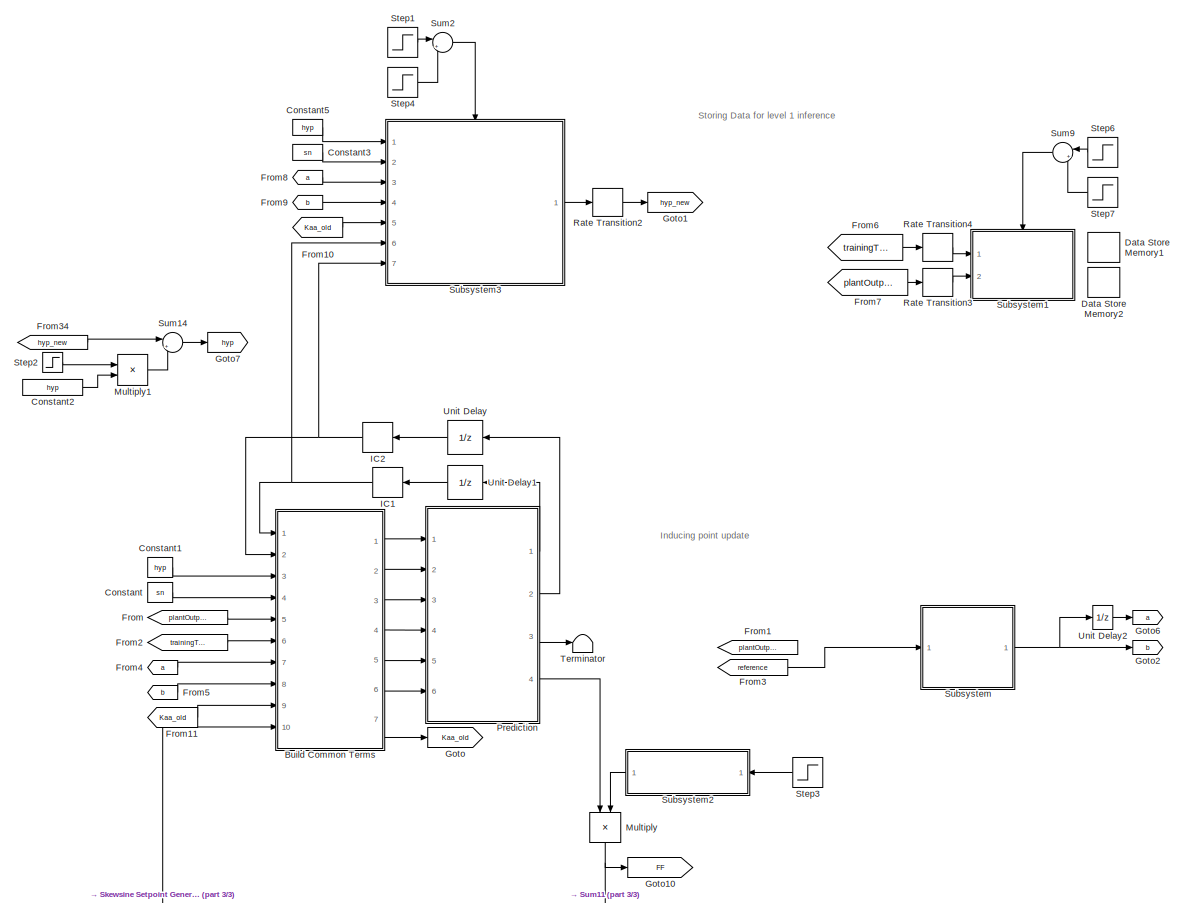
[diagram: root canvas - part 1/3, central region]
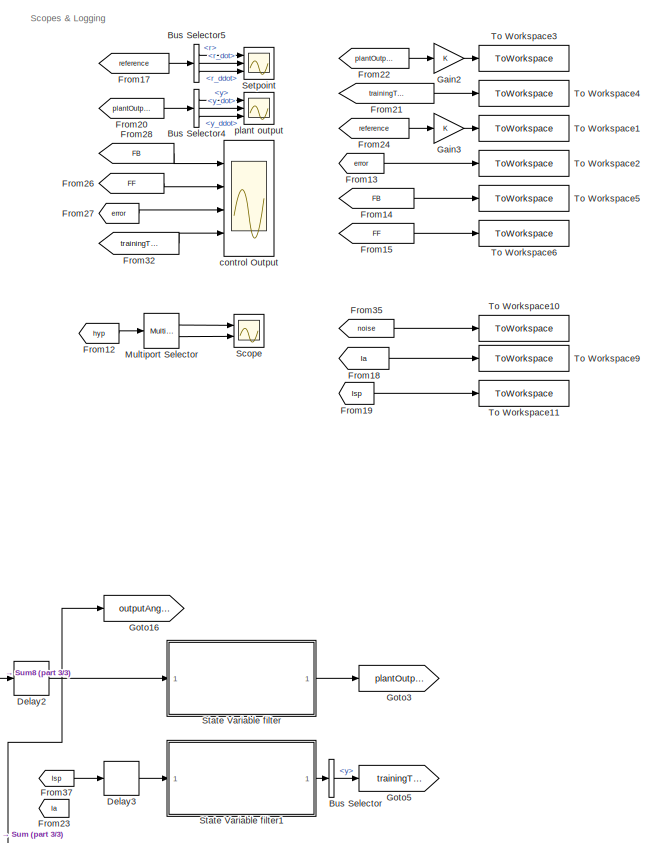
[diagram: root canvas - part 2/3, middle right region]
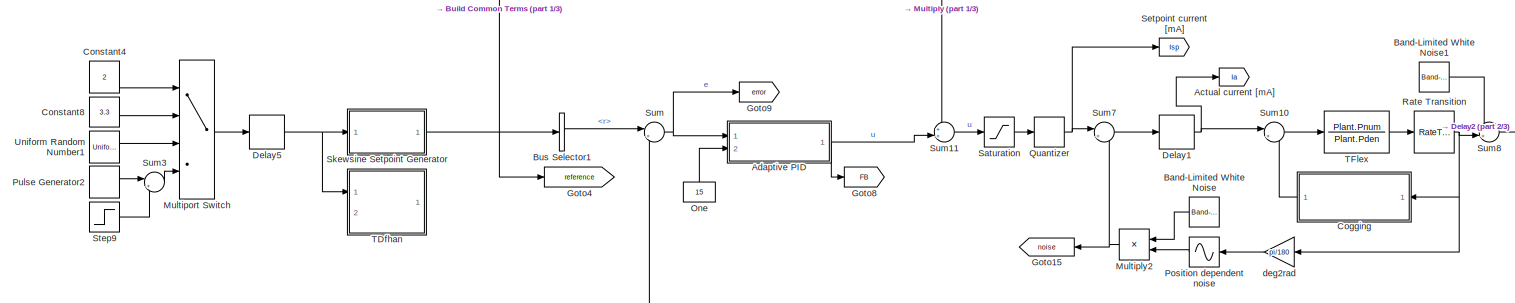
[diagram: root canvas - part 3/3, bottom center region]
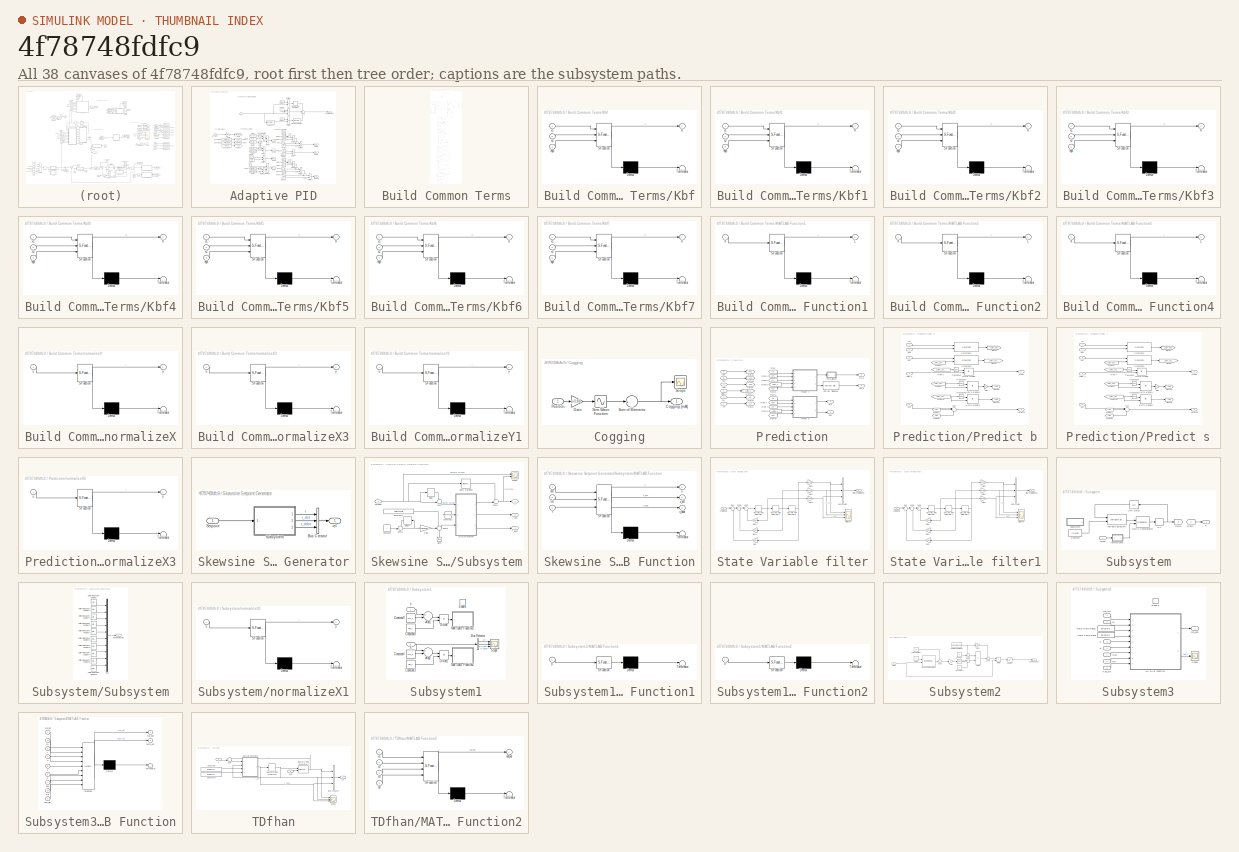
[diagram: thumbnail index - all 38 canvases of the model, root first then tree order]
MODEL slx_4f78748fdfc9
KIND model
CONFIG AbsTol = auto
CONFIG EnableMultiTasking = off
CONFIG FixedStep = auto
CONFIG MaxStep = auto
CONFIG MinStep = auto
CONFIG RelTol = 1e-3
CONFIG SampleTimeConstraint = Unconstrained
CONFIG Solver = VariableStepAuto
CONFIG SolverName = VariableStepAuto
CONFIG StartTime = 0.0
CONFIG StopTime = t_end
BLOCK [Goto] Actual current [mA]
  GotoTag = Ia
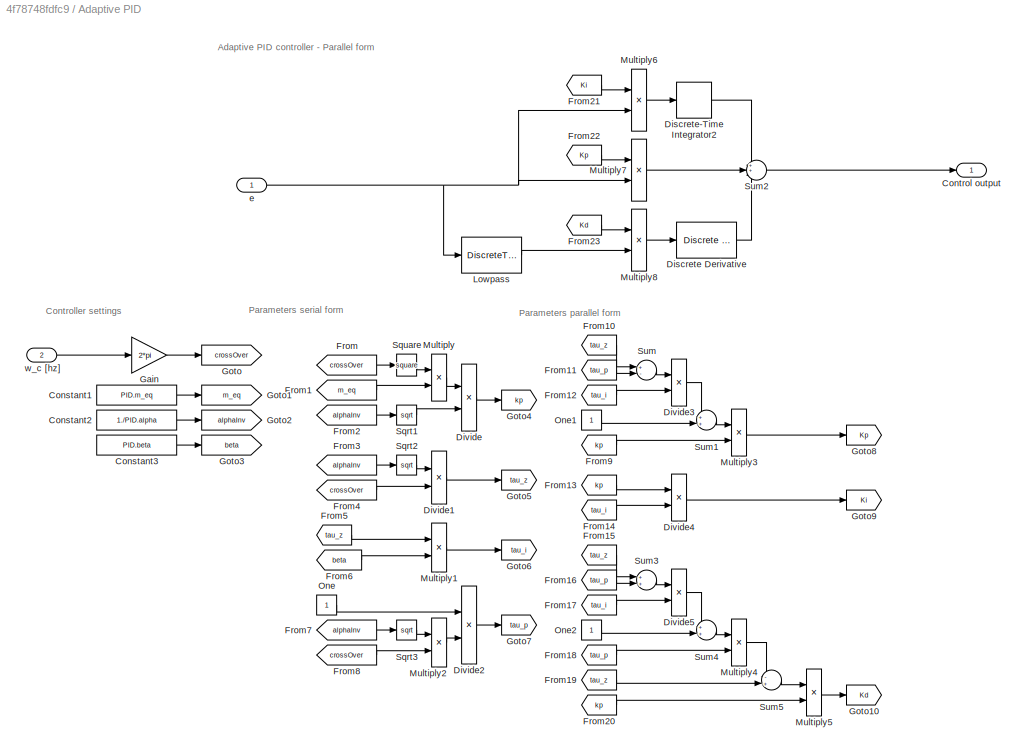
BLOCK [SubSystem] Adaptive PID
  Ports = [2, 1]
  RequestExecContextInheritance = off
BLOCK [Constant] Adaptive PID/Constant1
  Value = PID.m_eq
BLOCK [Constant] Adaptive PID/Constant2
  Value = 1./PID.alpha
BLOCK [Constant] Adaptive PID/Constant3
  Value = PID.beta
BLOCK [Outport] Adaptive PID/Control output
  IconDisplay = Port number
BLOCK [Reference] Adaptive PID/Discrete Derivative  REF=simulink/Discrete/Discrete Derivative
  Ports = [1, 1]
  SourceBlock = simulink/Discrete/Discrete Derivative
  SourceProductBaseCode = SL
  SourceProductName = Simulink
  SourceType = Discrete Derivative
BLOCK [DiscreteIntegrator] Adaptive PID/Discrete-Time Integrator2
  ICPrevOutput = DiscIntNeverNeededParam
  ICPrevScaledInput = DiscIntNeverNeededParam
  InitialConditionSetting = Auto
  Ports = [1, 1]
  SampleTime = -1
BLOCK [Product] Adaptive PID/Divide
  InputSameDT = off
  Inputs = */
  OutDataTypeStr = Inherit: Inherit via internal rule
  Ports = [2, 1]
  RndMeth = Floor
  SaturateOnIntegerOverflow = off
BLOCK [Product] Adaptive PID/Divide1
  InputSameDT = off
  Inputs = */
  OutDataTypeStr = Inherit: Inherit via internal rule
  Ports = [2, 1]
  RndMeth = Floor
  SaturateOnIntegerOverflow = off
BLOCK [Product] Adaptive PID/Divide2
  InputSameDT = off
  Inputs = */
  OutDataTypeStr = Inherit: Inherit via internal rule
  Ports = [2, 1]
  RndMeth = Floor
  SaturateOnIntegerOverflow = off
BLOCK [Product] Adaptive PID/Divide3
  InputSameDT = off
  Inputs = */
  OutDataTypeStr = Inherit: Inherit via internal rule
  Ports = [2, 1]
  RndMeth = Floor
  SaturateOnIntegerOverflow = off
BLOCK [Product] Adaptive PID/Divide4
  InputSameDT = off
  Inputs = */
  OutDataTypeStr = Inherit: Inherit via internal rule
  Ports = [2, 1]
  RndMeth = Floor
  SaturateOnIntegerOverflow = off
BLOCK [Product] Adaptive PID/Divide5
  InputSameDT = off
  Inputs = */
  OutDataTypeStr = Inherit: Inherit via internal rule
  Ports = [2, 1]
  RndMeth = Floor
  SaturateOnIntegerOverflow = off
BLOCK [From] Adaptive PID/From
  GotoTag = crossOver
BLOCK [From] Adaptive PID/From1
  GotoTag = m_eq
BLOCK [From] Adaptive PID/From10
  GotoTag = tau_z
BLOCK [From] Adaptive PID/From11
  GotoTag = tau_p
BLOCK [From] Adaptive PID/From12
  GotoTag = tau_i
BLOCK [From] Adaptive PID/From13
  GotoTag = kp
BLOCK [From] Adaptive PID/From14
  GotoTag = tau_i
BLOCK [From] Adaptive PID/From15
  GotoTag = tau_z
BLOCK [From] Adaptive PID/From16
  GotoTag = tau_p
BLOCK [From] Adaptive PID/From17
  GotoTag = tau_i
BLOCK [From] Adaptive PID/From18
  GotoTag = tau_p
BLOCK [From] Adaptive PID/From19
  GotoTag = tau_z
BLOCK [From] Adaptive PID/From2
  GotoTag = alphaInv
BLOCK [From] Adaptive PID/From20
  GotoTag = kp
BLOCK [From] Adaptive PID/From21
  GotoTag = Ki
BLOCK [From] Adaptive PID/From22
  GotoTag = Kp
BLOCK [From] Adaptive PID/From23
  GotoTag = Kd
BLOCK [From] Adaptive PID/From3
  GotoTag = alphaInv
BLOCK [From] Adaptive PID/From4
  GotoTag = crossOver
BLOCK [From] Adaptive PID/From5
  GotoTag = tau_z
BLOCK [From] Adaptive PID/From6
  GotoTag = beta
BLOCK [From] Adaptive PID/From7
  GotoTag = alphaInv
BLOCK [From] Adaptive PID/From8
  GotoTag = crossOver
BLOCK [From] Adaptive PID/From9
  GotoTag = kp
BLOCK [Gain] Adaptive PID/Gain
  Gain = 2*pi
  OutDataTypeStr = Inherit: Inherit via internal rule
  ParamDataTypeStr = Inherit: Inherit via internal rule
  SaturateOnIntegerOverflow = off
BLOCK [Goto] Adaptive PID/Goto
  GotoTag = crossOver
BLOCK [Goto] Adaptive PID/Goto1
  GotoTag = m_eq
BLOCK [Goto] Adaptive PID/Goto10
  GotoTag = Kd
BLOCK [Goto] Adaptive PID/Goto2
  GotoTag = alphaInv
BLOCK [Goto] Adaptive PID/Goto3
  GotoTag = beta
BLOCK [Goto] Adaptive PID/Goto4
  GotoTag = kp
BLOCK [Goto] Adaptive PID/Goto5
  GotoTag = tau_z
BLOCK [Goto] Adaptive PID/Goto6
  GotoTag = tau_i
BLOCK [Goto] Adaptive PID/Goto7
  GotoTag = tau_p
BLOCK [Goto] Adaptive PID/Goto8
  GotoTag = Kp
BLOCK [Goto] Adaptive PID/Goto9
  GotoTag = Ki
BLOCK [DiscreteTransferFcn] Adaptive PID/Lowpass
  Denominator = PID.LPden
  InputPortMap = u0
  Numerator = PID.LPnum
  Ports = [1, 1]
  SampleTime = ts
BLOCK [Product] Adaptive PID/Multiply
  InputSameDT = off
  OutDataTypeStr = Inherit: Inherit via internal rule
  Ports = [2, 1]
  RndMeth = Floor
  SaturateOnIntegerOverflow = off
BLOCK [Product] Adaptive PID/Multiply1
  InputSameDT = off
  OutDataTypeStr = Inherit: Inherit via internal rule
  Ports = [2, 1]
  RndMeth = Floor
  SaturateOnIntegerOverflow = off
BLOCK [Product] Adaptive PID/Multiply2
  InputSameDT = off
  OutDataTypeStr = Inherit: Inherit via internal rule
  Ports = [2, 1]
  RndMeth = Floor
  SaturateOnIntegerOverflow = off
BLOCK [Product] Adaptive PID/Multiply3
  InputSameDT = off
  OutDataTypeStr = Inherit: Inherit via internal rule
  Ports = [2, 1]
  RndMeth = Floor
  SaturateOnIntegerOverflow = off
BLOCK [Product] Adaptive PID/Multiply4
  InputSameDT = off
  OutDataTypeStr = Inherit: Inherit via internal rule
  Ports = [2, 1]
  RndMeth = Floor
  SaturateOnIntegerOverflow = off
BLOCK [Product] Adaptive PID/Multiply5
  InputSameDT = off
  OutDataTypeStr = Inherit: Inherit via internal rule
  Ports = [2, 1]
  RndMeth = Floor
  SaturateOnIntegerOverflow = off
BLOCK [Product] Adaptive PID/Multiply6
  InputSameDT = off
  OutDataTypeStr = Inherit: Inherit via internal rule
  Ports = [2, 1]
  RndMeth = Floor
  SaturateOnIntegerOverflow = off
BLOCK [Product] Adaptive PID/Multiply7
  InputSameDT = off
  OutDataTypeStr = Inherit: Inherit via internal rule
  Ports = [2, 1]
  RndMeth = Floor
  SaturateOnIntegerOverflow = off
BLOCK [Product] Adaptive PID/Multiply8
  InputSameDT = off
  OutDataTypeStr = Inherit: Inherit via internal rule
  Ports = [2, 1]
  RndMeth = Floor
  SaturateOnIntegerOverflow = off
BLOCK [Constant] Adaptive PID/One
  OutDataTypeStr = Inherit: Inherit via back propagation
BLOCK [Constant] Adaptive PID/One1
  OutDataTypeStr = Inherit: Inherit via back propagation
BLOCK [Constant] Adaptive PID/One2
  OutDataTypeStr = Inherit: Inherit via back propagation
BLOCK [Sqrt] Adaptive PID/Sqrt1
BLOCK [Sqrt] Adaptive PID/Sqrt2
BLOCK [Sqrt] Adaptive PID/Sqrt3
BLOCK [Math] Adaptive PID/Square
  Operator = square
  Ports = [1, 1]
BLOCK [Sum] Adaptive PID/Sum
  IconShape = round
  InputSameDT = off
  Inputs = +-|
  OutDataTypeStr = Inherit: Inherit via internal rule
  Ports = [2, 1]
  SaturateOnIntegerOverflow = off
BLOCK [Sum] Adaptive PID/Sum1
  IconShape = round
  InputSameDT = off
  Inputs = ++|
  OutDataTypeStr = Inherit: Inherit via internal rule
  Ports = [2, 1]
  SaturateOnIntegerOverflow = off
BLOCK [Sum] Adaptive PID/Sum2
  IconShape = round
  InputSameDT = off
  Inputs = 3
  OutDataTypeStr = Inherit: Inherit via internal rule
  Ports = [3, 1]
  SaturateOnIntegerOverflow = off
BLOCK [Sum] Adaptive PID/Sum3
  IconShape = round
  InputSameDT = off
  Inputs = ++|
  OutDataTypeStr = Inherit: Inherit via internal rule
  Ports = [2, 1]
  SaturateOnIntegerOverflow = off
BLOCK [Sum] Adaptive PID/Sum4
  IconShape = round
  InputSameDT = off
  Inputs = ++|
  OutDataTypeStr = Inherit: Inherit via internal rule
  Ports = [2, 1]
  SaturateOnIntegerOverflow = off
BLOCK [Sum] Adaptive PID/Sum5
  IconShape = round
  InputSameDT = off
  Inputs = -+|
  OutDataTypeStr = Inherit: Inherit via internal rule
  Ports = [2, 1]
  SaturateOnIntegerOverflow = off
BLOCK [Inport] Adaptive PID/e
  IconDisplay = Port number
BLOCK [Inport] Adaptive PID/w_c [hz]
  IconDisplay = Port number
  Port = 2
BLOCK [Reference] Band-Limited White Noise  REF=simulink/Sources/Band-Limited
White Noise
  Ports = [0, 1]
  SourceBlock = simulink/Sources/Band-Limited\nWhite Noise
  SourceProductBaseCode = SL
  SourceProductName = Simulink
  SourceType = Band-Limited White Noise.
BLOCK [Reference] Band-Limited White Noise1  REF=simulink/Sources/Band-Limited
White Noise
  Ports = [0, 1]
  SourceBlock = simulink/Sources/Band-Limited\nWhite Noise
  SourceProductBaseCode = SL
  SourceProductName = Simulink
  SourceType = Band-Limited White Noise.
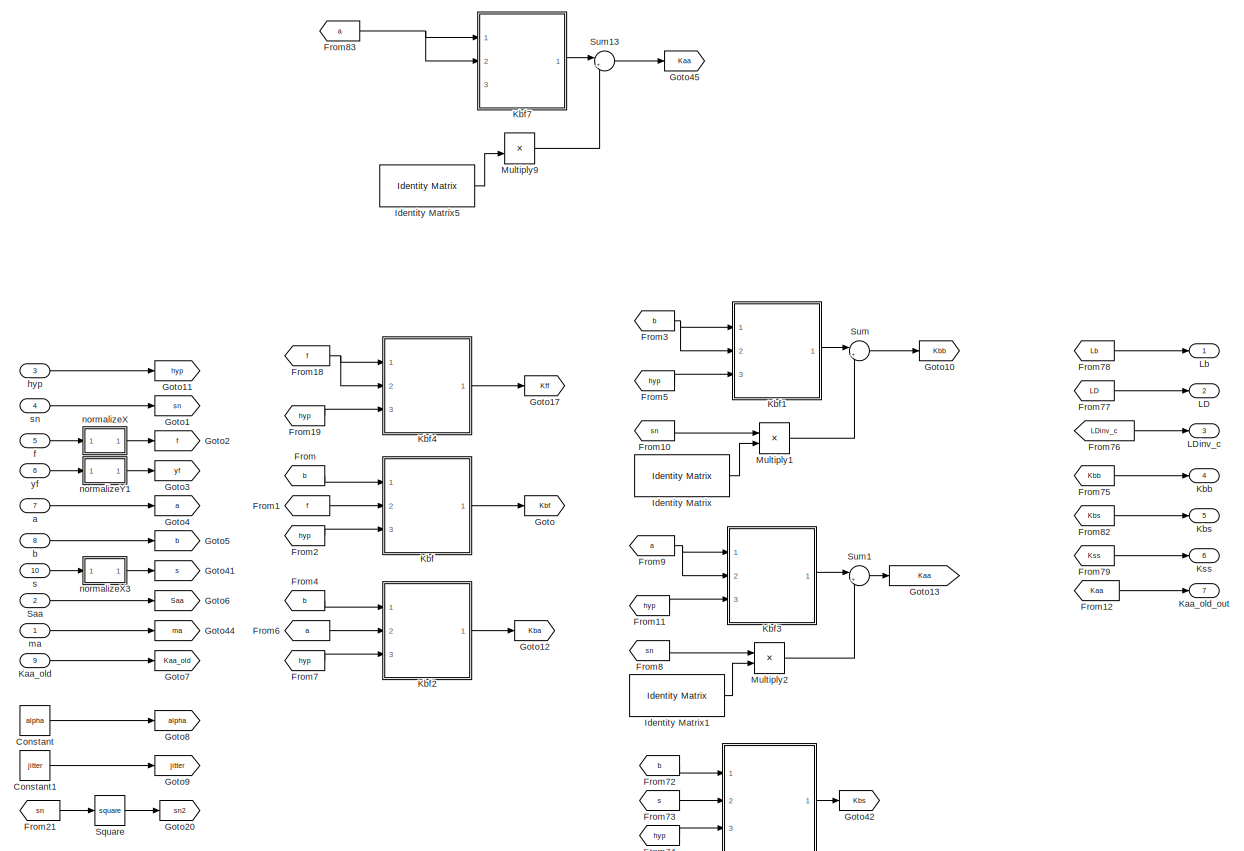
[diagram: Build Common Terms - part 1/4, full width, top band]
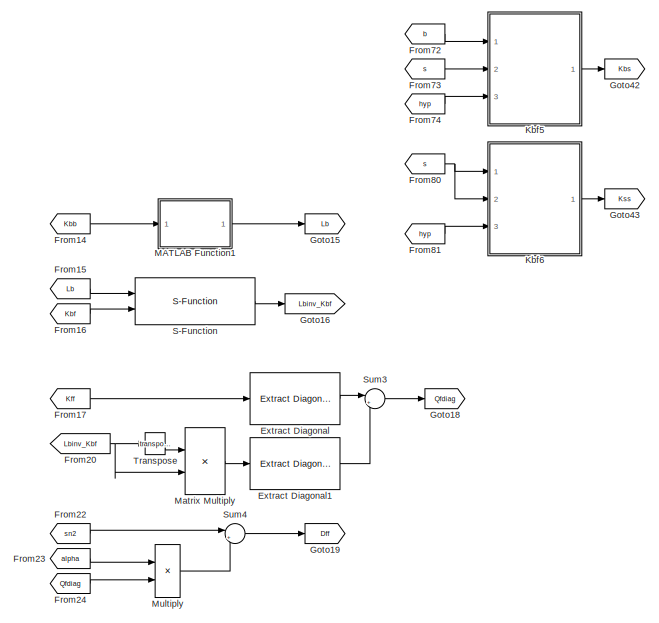
[diagram: Build Common Terms - part 2/4, top center region]
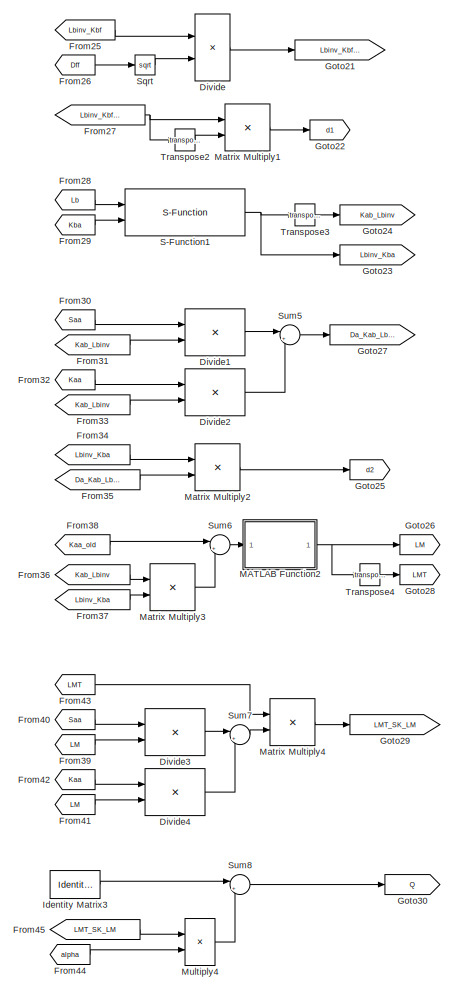
[diagram: Build Common Terms - part 3/4, central region]
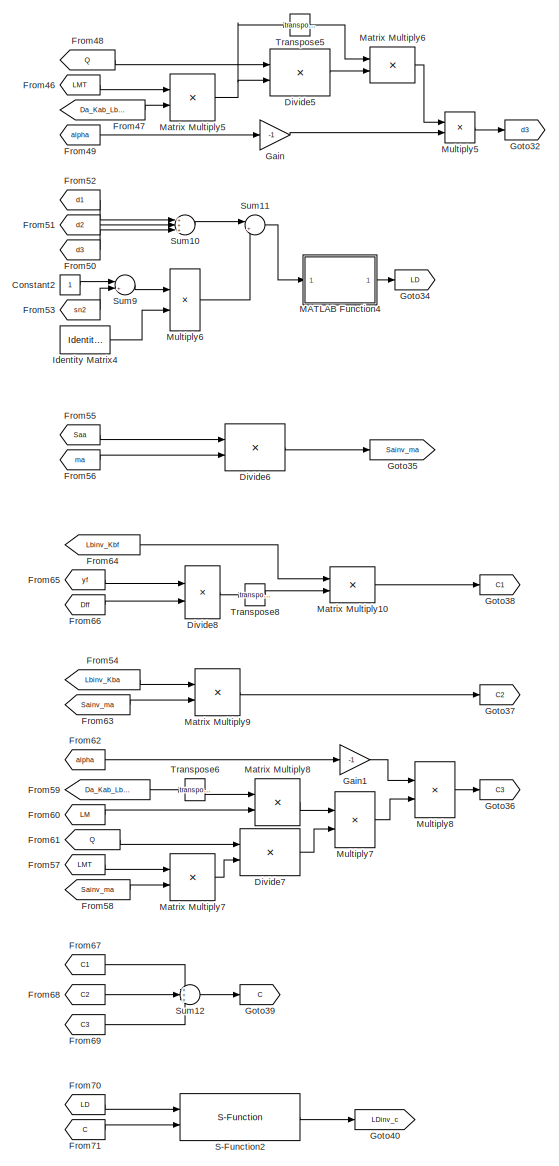
[diagram: Build Common Terms - part 4/4, bottom center region]
BLOCK [SubSystem] Build Common Terms
  Ports = [10, 7]
  RequestExecContextInheritance = off
BLOCK [Constant] Build Common Terms/Constant
  Value = alpha
BLOCK [Constant] Build Common Terms/Constant1
  Value = jitter
BLOCK [Constant] Build Common Terms/Constant2
BLOCK [Product] Build Common Terms/Divide
  InputSameDT = off
  Inputs = */
  OutDataTypeStr = Inherit: Inherit via internal rule
  Ports = [2, 1]
  RndMeth = Floor
  SaturateOnIntegerOverflow = off
BLOCK [Product] Build Common Terms/Divide1
  InputSameDT = off
  Inputs = /*
  Multiplication = Matrix(*)
  OutDataTypeStr = Inherit: Inherit via internal rule
  Ports = [2, 1]
  RndMeth = Floor
  SaturateOnIntegerOverflow = off
BLOCK [Product] Build Common Terms/Divide2
  InputSameDT = off
  Inputs = /*
  Multiplication = Matrix(*)
  OutDataTypeStr = Inherit: Inherit via internal rule
  Ports = [2, 1]
  RndMeth = Floor
  SaturateOnIntegerOverflow = off
BLOCK [Product] Build Common Terms/Divide3
  InputSameDT = off
  Inputs = /*
  Multiplication = Matrix(*)
  OutDataTypeStr = Inherit: Inherit via internal rule
  Ports = [2, 1]
  RndMeth = Floor
  SaturateOnIntegerOverflow = off
BLOCK [Product] Build Common Terms/Divide4
  InputSameDT = off
  Inputs = /*
  Multiplication = Matrix(*)
  OutDataTypeStr = Inherit: Inherit via internal rule
  Ports = [2, 1]
  RndMeth = Floor
  SaturateOnIntegerOverflow = off
BLOCK [Product] Build Common Terms/Divide5
  InputSameDT = off
  Inputs = /*
  Multiplication = Matrix(*)
  OutDataTypeStr = Inherit: Inherit via internal rule
  Ports = [2, 1]
  RndMeth = Floor
  SaturateOnIntegerOverflow = off
BLOCK [Product] Build Common Terms/Divide6
  InputSameDT = off
  Inputs = /*
  Multiplication = Matrix(*)
  OutDataTypeStr = Inherit: Inherit via internal rule
  Ports = [2, 1]
  RndMeth = Floor
  SaturateOnIntegerOverflow = off
BLOCK [Product] Build Common Terms/Divide7
  InputSameDT = off
  Inputs = /*
  Multiplication = Matrix(*)
  OutDataTypeStr = Inherit: Inherit via internal rule
  Ports = [2, 1]
  RndMeth = Floor
  SaturateOnIntegerOverflow = off
BLOCK [Product] Build Common Terms/Divide8
  InputSameDT = off
  Inputs = */
  OutDataTypeStr = Inherit: Inherit via internal rule
  Ports = [2, 1]
  RndMeth = Floor
  SaturateOnIntegerOverflow = off
BLOCK [Reference] Build Common Terms/Extract Diagonal  REF=dspmtrx3/Extract Diagonal
  Ports = [1, 1]
  SourceBlock = dspmtrx3/Extract Diagonal
  SourceProductBaseCode = DS
  SourceProductName = DSP System Toolbox
  SourceType = Extract Diagonal
BLOCK [Reference] Build Common Terms/Extract Diagonal1  REF=dspmtrx3/Extract Diagonal
  Ports = [1, 1]
  SourceBlock = dspmtrx3/Extract Diagonal
  SourceProductBaseCode = DS
  SourceProductName = DSP System Toolbox
  SourceType = Extract Diagonal
BLOCK [From] Build Common Terms/From
  GotoTag = b
BLOCK [From] Build Common Terms/From1
  GotoTag = f
BLOCK [From] Build Common Terms/From10
  GotoTag = sn
BLOCK [From] Build Common Terms/From11
  GotoTag = hyp
BLOCK [From] Build Common Terms/From12
  GotoTag = Kaa
BLOCK [From] Build Common Terms/From14
  GotoTag = Kbb
BLOCK [From] Build Common Terms/From15
  GotoTag = Lb
BLOCK [From] Build Common Terms/From16
  GotoTag = Kbf
BLOCK [From] Build Common Terms/From17
  GotoTag = Kff
BLOCK [From] Build Common Terms/From18
  GotoTag = f
BLOCK [From] Build Common Terms/From19
  GotoTag = hyp
BLOCK [From] Build Common Terms/From2
  GotoTag = hyp
BLOCK [From] Build Common Terms/From20
  GotoTag = Lbinv_Kbf
BLOCK [From] Build Common Terms/From21
  GotoTag = sn
BLOCK [From] Build Common Terms/From22
  GotoTag = sn2
BLOCK [From] Build Common Terms/From23
  GotoTag = alpha
BLOCK [From] Build Common Terms/From24
  GotoTag = Qfdiag
BLOCK [From] Build Common Terms/From25
  GotoTag = Lbinv_Kbf
BLOCK [From] Build Common Terms/From26
  GotoTag = Dff
BLOCK [From] Build Common Terms/From27
  GotoTag = Lbinv_Kbf_LDff
BLOCK [From] Build Common Terms/From28
  GotoTag = Lb
BLOCK [From] Build Common Terms/From29
  GotoTag = Kba
BLOCK [From] Build Common Terms/From3
  GotoTag = b
BLOCK [From] Build Common Terms/From30
  GotoTag = Saa
BLOCK [From] Build Common Terms/From31
  GotoTag = Kab_Lbinv
BLOCK [From] Build Common Terms/From32
  GotoTag = Kaa
BLOCK [From] Build Common Terms/From33
  GotoTag = Kab_Lbinv
BLOCK [From] Build Common Terms/From34
  GotoTag = Lbinv_Kba
BLOCK [From] Build Common Terms/From35
  GotoTag = Da_Kab_Lbinv
BLOCK [From] Build Common Terms/From36
  GotoTag = Kab_Lbinv
BLOCK [From] Build Common Terms/From37
  GotoTag = Lbinv_Kba
BLOCK [From] Build Common Terms/From38
  GotoTag = Kaa_old
BLOCK [From] Build Common Terms/From39
  GotoTag = LM
BLOCK [From] Build Common Terms/From4
  GotoTag = b
BLOCK [From] Build Common Terms/From40
  GotoTag = Saa
BLOCK [From] Build Common Terms/From41
  GotoTag = LM
BLOCK [From] Build Common Terms/From42
  GotoTag = Kaa
BLOCK [From] Build Common Terms/From43
  GotoTag = LMT
BLOCK [From] Build Common Terms/From44
  GotoTag = alpha
BLOCK [From] Build Common Terms/From45
  GotoTag = LMT_SK_LM
BLOCK [From] Build Common Terms/From46
  GotoTag = LMT
BLOCK [From] Build Common Terms/From47
  GotoTag = Da_Kab_Lbinv
BLOCK [From] Build Common Terms/From48
  GotoTag = Q
BLOCK [From] Build Common Terms/From49
  GotoTag = alpha
BLOCK [From] Build Common Terms/From5
  GotoTag = hyp
BLOCK [From] Build Common Terms/From50
  GotoTag = d3
BLOCK [From] Build Common Terms/From51
  GotoTag = d2
BLOCK [From] Build Common Terms/From52
  GotoTag = d1
BLOCK [From] Build Common Terms/From53
  GotoTag = sn2
BLOCK [From] Build Common Terms/From54
  GotoTag = Lbinv_Kba
BLOCK [From] Build Common Terms/From55
  GotoTag = Saa
BLOCK [From] Build Common Terms/From56
  GotoTag = ma
BLOCK [From] Build Common Terms/From57
  GotoTag = LMT
BLOCK [From] Build Common Terms/From58
  GotoTag = Sainv_ma
BLOCK [From] Build Common Terms/From59
  GotoTag = Da_Kab_Lbinv
BLOCK [From] Build Common Terms/From6
  GotoTag = a
BLOCK [From] Build Common Terms/From60
  GotoTag = LM
BLOCK [From] Build Common Terms/From61
  GotoTag = Q
BLOCK [From] Build Common Terms/From62
  GotoTag = alpha
BLOCK [From] Build Common Terms/From63
  GotoTag = Sainv_ma
BLOCK [From] Build Common Terms/From64
  GotoTag = Lbinv_Kbf
BLOCK [From] Build Common Terms/From65
  GotoTag = yf
BLOCK [From] Build Common Terms/From66
  GotoTag = Dff
BLOCK [From] Build Common Terms/From67
  GotoTag = C1
BLOCK [From] Build Common Terms/From68
  GotoTag = C2
BLOCK [From] Build Common Terms/From69
  GotoTag = C3
BLOCK [From] Build Common Terms/From7
  GotoTag = hyp
BLOCK [From] Build Common Terms/From70
  GotoTag = LD
BLOCK [From] Build Common Terms/From71
  GotoTag = C
BLOCK [From] Build Common Terms/From72
  GotoTag = b
BLOCK [From] Build Common Terms/From73
  GotoTag = s
BLOCK [From] Build Common Terms/From74
  GotoTag = hyp
BLOCK [From] Build Common Terms/From75
  GotoTag = Kbb
BLOCK [From] Build Common Terms/From76
  GotoTag = LDinv_c
BLOCK [From] Build Common Terms/From77
  GotoTag = LD
BLOCK [From] Build Common Terms/From78
  GotoTag = Lb
BLOCK [From] Build Common Terms/From79
  GotoTag = Kss
BLOCK [From] Build Common Terms/From8
  GotoTag = sn
BLOCK [From] Build Common Terms/From80
  GotoTag = s
BLOCK [From] Build Common Terms/From81
  GotoTag = hyp
BLOCK [From] Build Common Terms/From82
  GotoTag = Kbs
BLOCK [From] Build Common Terms/From83
  Commented = on
  GotoTag = a
BLOCK [From] Build Common Terms/From9
  GotoTag = a
BLOCK [Gain] Build Common Terms/Gain
  Gain = -1
  OutDataTypeStr = Inherit: Inherit via internal rule
  ParamDataTypeStr = Inherit: Inherit via internal rule
  SaturateOnIntegerOverflow = off
BLOCK [Gain] Build Common Terms/Gain1
  Gain = -1
  OutDataTypeStr = Inherit: Inherit via internal rule
  ParamDataTypeStr = Inherit: Inherit via internal rule
  SaturateOnIntegerOverflow = off
BLOCK [Goto] Build Common Terms/Goto
  GotoTag = Kbf
BLOCK [Goto] Build Common Terms/Goto1
  GotoTag = sn
BLOCK [Goto] Build Common Terms/Goto10
  GotoTag = Kbb
BLOCK [Goto] Build Common Terms/Goto11
  GotoTag = hyp
BLOCK [Goto] Build Common Terms/Goto12
  GotoTag = Kba
BLOCK [Goto] Build Common Terms/Goto13
  GotoTag = Kaa
BLOCK [Goto] Build Common Terms/Goto15
  GotoTag = Lb
BLOCK [Goto] Build Common Terms/Goto16
  GotoTag = Lbinv_Kbf
BLOCK [Goto] Build Common Terms/Goto17
  GotoTag = Kff
BLOCK [Goto] Build Common Terms/Goto18
  GotoTag = Qfdiag
BLOCK [Goto] Build Common Terms/Goto19
  GotoTag = Dff
BLOCK [Goto] Build Common Terms/Goto2
  GotoTag = f
BLOCK [Goto] Build Common Terms/Goto20
  GotoTag = sn2
BLOCK [Goto] Build Common Terms/Goto21
  GotoTag = Lbinv_Kbf_LDff
BLOCK [Goto] Build Common Terms/Goto22
  GotoTag = d1
BLOCK [Goto] Build Common Terms/Goto23
  GotoTag = Lbinv_Kba
BLOCK [Goto] Build Common Terms/Goto24
  GotoTag = Kab_Lbinv
BLOCK [Goto] Build Common Terms/Goto25
  GotoTag = d2
BLOCK [Goto] Build Common Terms/Goto26
  GotoTag = LM
BLOCK [Goto] Build Common Terms/Goto27
  GotoTag = Da_Kab_Lbinv
BLOCK [Goto] Build Common Terms/Goto28
  GotoTag = LMT
BLOCK [Goto] Build Common Terms/Goto29
  GotoTag = LMT_SK_LM
BLOCK [Goto] Build Common Terms/Goto3
  GotoTag = yf
BLOCK [Goto] Build Common Terms/Goto30
  GotoTag = Q
BLOCK [Goto] Build Common Terms/Goto32
  GotoTag = d3
BLOCK [Goto] Build Common Terms/Goto34
  GotoTag = LD
BLOCK [Goto] Build Common Terms/Goto35
  GotoTag = Sainv_ma
BLOCK [Goto] Build Common Terms/Goto36
  GotoTag = C3
BLOCK [Goto] Build Common Terms/Goto37
  GotoTag = C2
BLOCK [Goto] Build Common Terms/Goto38
  GotoTag = C1
BLOCK [Goto] Build Common Terms/Goto39
  GotoTag = C
BLOCK [Goto] Build Common Terms/Goto4
  GotoTag = a
BLOCK [Goto] Build Common Terms/Goto40
  GotoTag = LDinv_c
BLOCK [Goto] Build Common Terms/Goto41
  GotoTag = s
BLOCK [Goto] Build Common Terms/Goto42
  GotoTag = Kbs
BLOCK [Goto] Build Common Terms/Goto43
  GotoTag = Kss
BLOCK [Goto] Build Common Terms/Goto44
  GotoTag = ma
BLOCK [Goto] Build Common Terms/Goto45
  Commented = on
  GotoTag = Kaa
BLOCK [Goto] Build Common Terms/Goto5
  GotoTag = b
BLOCK [Goto] Build Common Terms/Goto6
  GotoTag = Saa
BLOCK [Goto] Build Common Terms/Goto7
  GotoTag = Kaa_old
BLOCK [Goto] Build Common Terms/Goto8
  GotoTag = alpha
BLOCK [Goto] Build Common Terms/Goto9
  GotoTag = jitter
BLOCK [Reference] Build Common Terms/Identity Matrix  REF=dspmtrx3/Identity Matrix
  Ports = [0, 1]
  SourceBlock = dspmtrx3/Identity Matrix
  SourceProductBaseCode = DS
  SourceProductName = DSP System Toolbox
  SourceType = Identity Matrix
BLOCK [Reference] Build Common Terms/Identity Matrix1  REF=dspmtrx3/Identity Matrix
  Ports = [0, 1]
  SourceBlock = dspmtrx3/Identity Matrix
  SourceProductBaseCode = DS
  SourceProductName = DSP System Toolbox
  SourceType = Identity Matrix
BLOCK [Reference] Build Common Terms/Identity Matrix3  REF=dspmtrx3/Identity Matrix
  Ports = [0, 1]
  SourceBlock = dspmtrx3/Identity Matrix
  SourceProductBaseCode = DS
  SourceProductName = DSP System Toolbox
  SourceType = Identity Matrix
BLOCK [Reference] Build Common Terms/Identity Matrix4  REF=dspmtrx3/Identity Matrix
  Ports = [0, 1]
  SourceBlock = dspmtrx3/Identity Matrix
  SourceProductBaseCode = DS
  SourceProductName = DSP System Toolbox
  SourceType = Identity Matrix
BLOCK [Reference] Build Common Terms/Identity Matrix5  REF=dspmtrx3/Identity Matrix
  Commented = on
  Ports = [0, 1]
  SourceBlock = dspmtrx3/Identity Matrix
  SourceProductBaseCode = DS
  SourceProductName = DSP System Toolbox
  SourceType = Identity Matrix
BLOCK [Inport] Build Common Terms/Kaa_old
  IconDisplay = Port number
  Port = 9
BLOCK [Outport] Build Common Terms/Kaa_old_out
  IconDisplay = Port number
  Port = 7
BLOCK [Outport] Build Common Terms/Kbb 
  IconDisplay = Port number
  Port = 4
BLOCK [SubSystem] Build Common Terms/Kbf
  ErrorFcn = Stateflow.Translate.translate
  PermitHierarchicalResolution = ExplicitOnly
  Ports = [3, 1]
  RequestExecContextInheritance = off
  SFBlockType = MATLAB Function
  TreatAsAtomicUnit = on
BLOCK [Demux] Build Common Terms/Kbf/ Demux 
  Outputs = 1
  Ports = [1, 1]
BLOCK [S-Function] Build Common Terms/Kbf/ SFunction 
  EnableBusSupport = on
  FunctionName = sf_sfun
  PortCounts = [3 2]
  Ports = [3, 2]
  SFcnIsStateOwnerBlock = off
  SFunctionDeploymentMode = off
  Tag = Stateflow S-Function TFlex_SSGP 4
BLOCK [Terminator] Build Common Terms/Kbf/ Terminator 
BLOCK [Outport] Build Common Terms/Kbf/K
  IconDisplay = Port number
BLOCK [Inport] Build Common Terms/Kbf/hyp
  IconDisplay = Port number
  Port = 3
BLOCK [Inport] Build Common Terms/Kbf/x1
  IconDisplay = Port number
BLOCK [Inport] Build Common Terms/Kbf/x2
  IconDisplay = Port number
  Port = 2
BLOCK [SubSystem] Build Common Terms/Kbf1
  ErrorFcn = Stateflow.Translate.translate
  PermitHierarchicalResolution = ExplicitOnly
  Ports = [3, 1]
  RequestExecContextInheritance = off
  SFBlockType = MATLAB Function
  TreatAsAtomicUnit = on
BLOCK [Demux] Build Common Terms/Kbf1/ Demux 
  Outputs = 1
  Ports = [1, 1]
BLOCK [S-Function] Build Common Terms/Kbf1/ SFunction 
  EnableBusSupport = on
  FunctionName = sf_sfun
  PortCounts = [3 2]
  Ports = [3, 2]
  SFcnIsStateOwnerBlock = off
  SFunctionDeploymentMode = off
  Tag = Stateflow S-Function TFlex_SSGP 6
BLOCK [Terminator] Build Common Terms/Kbf1/ Terminator 
BLOCK [Outport] Build Common Terms/Kbf1/K
  IconDisplay = Port number
BLOCK [Inport] Build Common Terms/Kbf1/hyp
  IconDisplay = Port number
  Port = 3
BLOCK [Inport] Build Common Terms/Kbf1/x1
  IconDisplay = Port number
BLOCK [Inport] Build Common Terms/Kbf1/x2
  IconDisplay = Port number
  Port = 2
BLOCK [SubSystem] Build Common Terms/Kbf2
  ErrorFcn = Stateflow.Translate.translate
  PermitHierarchicalResolution = ExplicitOnly
  Ports = [3, 1]
  RequestExecContextInheritance = off
  SFBlockType = MATLAB Function
  TreatAsAtomicUnit = on
BLOCK [Demux] Build Common Terms/Kbf2/ Demux 
  Outputs = 1
  Ports = [1, 1]
BLOCK [S-Function] Build Common Terms/Kbf2/ SFunction 
  EnableBusSupport = on
  FunctionName = sf_sfun
  PortCounts = [3 2]
  Ports = [3, 2]
  SFcnIsStateOwnerBlock = off
  SFunctionDeploymentMode = off
  Tag = Stateflow S-Function TFlex_SSGP 8
BLOCK [Terminator] Build Common Terms/Kbf2/ Terminator 
BLOCK [Outport] Build Common Terms/Kbf2/K
  IconDisplay = Port number
BLOCK [Inport] Build Common Terms/Kbf2/hyp
  IconDisplay = Port number
  Port = 3
BLOCK [Inport] Build Common Terms/Kbf2/x1
  IconDisplay = Port number
BLOCK [Inport] Build Common Terms/Kbf2/x2
  IconDisplay = Port number
  Port = 2
BLOCK [SubSystem] Build Common Terms/Kbf3
  ErrorFcn = Stateflow.Translate.translate
  PermitHierarchicalResolution = ExplicitOnly
  Ports = [3, 1]
  RequestExecContextInheritance = off
  SFBlockType = MATLAB Function
  TreatAsAtomicUnit = on
BLOCK [Demux] Build Common Terms/Kbf3/ Demux 
  Outputs = 1
  Ports = [1, 1]
BLOCK [S-Function] Build Common Terms/Kbf3/ SFunction 
  EnableBusSupport = on
  FunctionName = sf_sfun
  PortCounts = [3 2]
  Ports = [3, 2]
  SFcnIsStateOwnerBlock = off
  SFunctionDeploymentMode = off
  Tag = Stateflow S-Function TFlex_SSGP 10
BLOCK [Terminator] Build Common Terms/Kbf3/ Terminator 
BLOCK [Outport] Build Common Terms/Kbf3/K
  IconDisplay = Port number
BLOCK [Inport] Build Common Terms/Kbf3/hyp
  IconDisplay = Port number
  Port = 3
BLOCK [Inport] Build Common Terms/Kbf3/x1
  IconDisplay = Port number
BLOCK [Inport] Build Common Terms/Kbf3/x2
  IconDisplay = Port number
  Port = 2
BLOCK [SubSystem] Build Common Terms/Kbf4
  ErrorFcn = Stateflow.Translate.translate
  PermitHierarchicalResolution = ExplicitOnly
  Ports = [3, 1]
  RequestExecContextInheritance = off
  SFBlockType = MATLAB Function
  TreatAsAtomicUnit = on
BLOCK [Demux] Build Common Terms/Kbf4/ Demux 
  Outputs = 1
  Ports = [1, 1]
BLOCK [S-Function] Build Common Terms/Kbf4/ SFunction 
  EnableBusSupport = on
  FunctionName = sf_sfun
  PortCounts = [3 2]
  Ports = [3, 2]
  SFcnIsStateOwnerBlock = off
  SFunctionDeploymentMode = off
  Tag = Stateflow S-Function TFlex_SSGP 12
BLOCK [Terminator] Build Common Terms/Kbf4/ Terminator 
BLOCK [Outport] Build Common Terms/Kbf4/K
  IconDisplay = Port number
BLOCK [Inport] Build Common Terms/Kbf4/hyp
  IconDisplay = Port number
  Port = 3
BLOCK [Inport] Build Common Terms/Kbf4/x1
  IconDisplay = Port number
BLOCK [Inport] Build Common Terms/Kbf4/x2
  IconDisplay = Port number
  Port = 2
BLOCK [SubSystem] Build Common Terms/Kbf5
  ErrorFcn = Stateflow.Translate.translate
  PermitHierarchicalResolution = ExplicitOnly
  Ports = [3, 1]
  RequestExecContextInheritance = off
  SFBlockType = MATLAB Function
  TreatAsAtomicUnit = on
BLOCK [Demux] Build Common Terms/Kbf5/ Demux 
  Outputs = 1
  Ports = [1, 1]
BLOCK [S-Function] Build Common Terms/Kbf5/ SFunction 
  EnableBusSupport = on
  FunctionName = sf_sfun
  PortCounts = [3 2]
  Ports = [3, 2]
  SFcnIsStateOwnerBlock = off
  SFunctionDeploymentMode = off
  Tag = Stateflow S-Function TFlex_SSGP 18
BLOCK [Terminator] Build Common Terms/Kbf5/ Terminator 
BLOCK [Outport] Build Common Terms/Kbf5/K
  IconDisplay = Port number
BLOCK [Inport] Build Common Terms/Kbf5/hyp
  IconDisplay = Port number
  Port = 3
BLOCK [Inport] Build Common Terms/Kbf5/x1
  IconDisplay = Port number
BLOCK [Inport] Build Common Terms/Kbf5/x2
  IconDisplay = Port number
  Port = 2
BLOCK [SubSystem] Build Common Terms/Kbf6
  ErrorFcn = Stateflow.Translate.translate
  PermitHierarchicalResolution = ExplicitOnly
  Ports = [3, 1]
  RequestExecContextInheritance = off
  SFBlockType = MATLAB Function
  TreatAsAtomicUnit = on
BLOCK [Demux] Build Common Terms/Kbf6/ Demux 
  Outputs = 1
  Ports = [1, 1]
BLOCK [S-Function] Build Common Terms/Kbf6/ SFunction 
  EnableBusSupport = on
  FunctionName = sf_sfun
  PortCounts = [3 2]
  Ports = [3, 2]
  SFcnIsStateOwnerBlock = off
  SFunctionDeploymentMode = off
  Tag = Stateflow S-Function TFlex_SSGP 13
BLOCK [Terminator] Build Common Terms/Kbf6/ Terminator 
BLOCK [Outport] Build Common Terms/Kbf6/K
  IconDisplay = Port number
BLOCK [Inport] Build Common Terms/Kbf6/hyp
  IconDisplay = Port number
  Port = 3
BLOCK [Inport] Build Common Terms/Kbf6/x1
  IconDisplay = Port number
BLOCK [Inport] Build Common Terms/Kbf6/x2
  IconDisplay = Port number
  Port = 2
BLOCK [SubSystem] Build Common Terms/Kbf7
  Commented = on
  ErrorFcn = Stateflow.Translate.translate
  PermitHierarchicalResolution = ExplicitOnly
  Ports = [3, 1]
  RequestExecContextInheritance = off
  SFBlockType = MATLAB Function
  TreatAsAtomicUnit = on
BLOCK [Demux] Build Common Terms/Kbf7/ Demux 
  Outputs = 1
  Ports = [1, 1]
BLOCK [S-Function] Build Common Terms/Kbf7/ SFunction 
  EnableBusSupport = on
  FunctionName = sf_sfun
  PortCounts = [3 2]
  Ports = [3, 2]
  SFcnIsStateOwnerBlock = off
  SFunctionDeploymentMode = off
  Tag = Stateflow S-Function TFlex_SSGP 1
BLOCK [Terminator] Build Common Terms/Kbf7/ Terminator 
BLOCK [Outport] Build Common Terms/Kbf7/K
  IconDisplay = Port number
BLOCK [Inport] Build Common Terms/Kbf7/hyp
  IconDisplay = Port number
  Port = 3
BLOCK [Inport] Build Common Terms/Kbf7/x1
  IconDisplay = Port number
BLOCK [Inport] Build Common Terms/Kbf7/x2
  IconDisplay = Port number
  Port = 2
BLOCK [Outport] Build Common Terms/Kbs
  IconDisplay = Port number
  Port = 5
BLOCK [Outport] Build Common Terms/Kss
  IconDisplay = Port number
  Port = 6
BLOCK [Outport] Build Common Terms/LD
  IconDisplay = Port number
  Port = 2
BLOCK [Outport] Build Common Terms/LDinv_c
  IconDisplay = Port number
  Port = 3
BLOCK [Outport] Build Common Terms/Lb
  IconDisplay = Port number
BLOCK [SubSystem] Build Common Terms/MATLAB Function1
  ErrorFcn = Stateflow.Translate.translate
  PermitHierarchicalResolution = ExplicitOnly
  Ports = [1, 1]
  RequestExecContextInheritance = off
  SFBlockType = MATLAB Function
  TreatAsAtomicUnit = on
BLOCK [Demux] Build Common Terms/MATLAB Function1/ Demux 
  Outputs = 1
  Ports = [1, 1]
BLOCK [S-Function] Build Common Terms/MATLAB Function1/ SFunction 
  EnableBusSupport = on
  FunctionName = sf_sfun
  PortCounts = [1 2]
  Ports = [1, 2]
  SFcnIsStateOwnerBlock = off
  SFunctionDeploymentMode = off
  Tag = Stateflow S-Function TFlex_SSGP 11
BLOCK [Terminator] Build Common Terms/MATLAB Function1/ Terminator 
BLOCK [Inport] Build Common Terms/MATLAB Function1/K
  IconDisplay = Port number
BLOCK [Outport] Build Common Terms/MATLAB Function1/L
  IconDisplay = Port number
BLOCK [SubSystem] Build Common Terms/MATLAB Function2
  ErrorFcn = Stateflow.Translate.translate
  PermitHierarchicalResolution = ExplicitOnly
  Ports = [1, 1]
  RequestExecContextInheritance = off
  SFBlockType = MATLAB Function
  TreatAsAtomicUnit = on
BLOCK [Demux] Build Common Terms/MATLAB Function2/ Demux 
  Outputs = 1
  Ports = [1, 1]
BLOCK [S-Function] Build Common Terms/MATLAB Function2/ SFunction 
  EnableBusSupport = on
  FunctionName = sf_sfun
  PortCounts = [1 2]
  Ports = [1, 2]
  SFcnIsStateOwnerBlock = off
  SFunctionDeploymentMode = off
  Tag = Stateflow S-Function TFlex_SSGP 14
BLOCK [Terminator] Build Common Terms/MATLAB Function2/ Terminator 
BLOCK [Inport] Build Common Terms/MATLAB Function2/K
  IconDisplay = Port number
BLOCK [Outport] Build Common Terms/MATLAB Function2/L
  IconDisplay = Port number
BLOCK [SubSystem] Build Common Terms/MATLAB Function4
  ErrorFcn = Stateflow.Translate.translate
  PermitHierarchicalResolution = ExplicitOnly
  Ports = [1, 1]
  RequestExecContextInheritance = off
  SFBlockType = MATLAB Function
  TreatAsAtomicUnit = on
BLOCK [Demux] Build Common Terms/MATLAB Function4/ Demux 
  Outputs = 1
  Ports = [1, 1]
BLOCK [S-Function] Build Common Terms/MATLAB Function4/ SFunction 
  EnableBusSupport = on
  FunctionName = sf_sfun
  PortCounts = [1 2]
  Ports = [1, 2]
  SFcnIsStateOwnerBlock = off
  SFunctionDeploymentMode = off
  Tag = Stateflow S-Function TFlex_SSGP 16
BLOCK [Terminator] Build Common Terms/MATLAB Function4/ Terminator 
BLOCK [Inport] Build Common Terms/MATLAB Function4/K
  IconDisplay = Port number
BLOCK [Outport] Build Common Terms/MATLAB Function4/L
  IconDisplay = Port number
BLOCK [Product] Build Common Terms/Matrix Multiply
  InputSameDT = off
  Multiplication = Matrix(*)
  OutDataTypeStr = Inherit: Inherit via internal rule
  Ports = [2, 1]
  RndMeth = Floor
  SaturateOnIntegerOverflow = off
BLOCK [Product] Build Common Terms/Matrix Multiply1
  InputSameDT = off
  Multiplication = Matrix(*)
  OutDataTypeStr = Inherit: Inherit via internal rule
  Ports = [2, 1]
  RndMeth = Floor
  SaturateOnIntegerOverflow = off
BLOCK [Product] Build Common Terms/Matrix Multiply10
  InputSameDT = off
  Multiplication = Matrix(*)
  OutDataTypeStr = Inherit: Inherit via internal rule
  Ports = [2, 1]
  RndMeth = Floor
  SaturateOnIntegerOverflow = off
BLOCK [Product] Build Common Terms/Matrix Multiply2
  InputSameDT = off
  Multiplication = Matrix(*)
  OutDataTypeStr = Inherit: Inherit via internal rule
  Ports = [2, 1]
  RndMeth = Floor
  SaturateOnIntegerOverflow = off
BLOCK [Product] Build Common Terms/Matrix Multiply3
  InputSameDT = off
  Multiplication = Matrix(*)
  OutDataTypeStr = Inherit: Inherit via internal rule
  Ports = [2, 1]
  RndMeth = Floor
  SaturateOnIntegerOverflow = off
BLOCK [Product] Build Common Terms/Matrix Multiply4
  InputSameDT = off
  Multiplication = Matrix(*)
  OutDataTypeStr = Inherit: Inherit via internal rule
  Ports = [2, 1]
  RndMeth = Floor
  SaturateOnIntegerOverflow = off
BLOCK [Product] Build Common Terms/Matrix Multiply5
  InputSameDT = off
  Multiplication = Matrix(*)
  OutDataTypeStr = Inherit: Inherit via internal rule
  Ports = [2, 1]
  RndMeth = Floor
  SaturateOnIntegerOverflow = off
BLOCK [Product] Build Common Terms/Matrix Multiply6
  InputSameDT = off
  Multiplication = Matrix(*)
  OutDataTypeStr = Inherit: Inherit via internal rule
  Ports = [2, 1]
  RndMeth = Floor
  SaturateOnIntegerOverflow = off
BLOCK [Product] Build Common Terms/Matrix Multiply7
  InputSameDT = off
  Multiplication = Matrix(*)
  OutDataTypeStr = Inherit: Inherit via internal rule
  Ports = [2, 1]
  RndMeth = Floor
  SaturateOnIntegerOverflow = off
BLOCK [Product] Build Common Terms/Matrix Multiply8
  InputSameDT = off
  Multiplication = Matrix(*)
  OutDataTypeStr = Inherit: Inherit via internal rule
  Ports = [2, 1]
  RndMeth = Floor
  SaturateOnIntegerOverflow = off
BLOCK [Product] Build Common Terms/Matrix Multiply9
  InputSameDT = off
  Multiplication = Matrix(*)
  OutDataTypeStr = Inherit: Inherit via internal rule
  Ports = [2, 1]
  RndMeth = Floor
  SaturateOnIntegerOverflow = off
BLOCK [Product] Build Common Terms/Multiply
  InputSameDT = off
  OutDataTypeStr = Inherit: Inherit via internal rule
  Ports = [2, 1]
  RndMeth = Floor
  SaturateOnIntegerOverflow = off
BLOCK [Product] Build Common Terms/Multiply1
  InputSameDT = off
  OutDataTypeStr = Inherit: Inherit via internal rule
  Ports = [2, 1]
  RndMeth = Floor
  SaturateOnIntegerOverflow = off
BLOCK [Product] Build Common Terms/Multiply2
  InputSameDT = off
  OutDataTypeStr = Inherit: Inherit via internal rule
  Ports = [2, 1]
  RndMeth = Floor
  SaturateOnIntegerOverflow = off
BLOCK [Product] Build Common Terms/Multiply4
  InputSameDT = off
  OutDataTypeStr = Inherit: Inherit via internal rule
  Ports = [2, 1]
  RndMeth = Floor
  SaturateOnIntegerOverflow = off
BLOCK [Product] Build Common Terms/Multiply5
  InputSameDT = off
  OutDataTypeStr = Inherit: Inherit via internal rule
  Ports = [2, 1]
  RndMeth = Floor
  SaturateOnIntegerOverflow = off
BLOCK [Product] Build Common Terms/Multiply6
  InputSameDT = off
  OutDataTypeStr = Inherit: Inherit via internal rule
  Ports = [2, 1]
  RndMeth = Floor
  SaturateOnIntegerOverflow = off
BLOCK [Product] Build Common Terms/Multiply7
  InputSameDT = off
  Multiplication = Matrix(*)
  OutDataTypeStr = Inherit: Inherit via internal rule
  Ports = [2, 1]
  RndMeth = Floor
  SaturateOnIntegerOverflow = off
BLOCK [Product] Build Common Terms/Multiply8
  InputSameDT = off
  OutDataTypeStr = Inherit: Inherit via internal rule
  Ports = [2, 1]
  RndMeth = Floor
  SaturateOnIntegerOverflow = off
BLOCK [Product] Build Common Terms/Multiply9
  Commented = on
  InputSameDT = off
  OutDataTypeStr = Inherit: Inherit via internal rule
  Ports = [2, 1]
  RndMeth = Floor
  SaturateOnIntegerOverflow = off
BLOCK [S-Function] Build Common Terms/S-Function
  EnableBusSupport = off
  FunctionName = solve_lowerTriangular_sfun
  Parameters = Mb
  Ports = [2, 1]
  SFcnIsStateOwnerBlock = off
  SFunctionDeploymentMode = off
BLOCK [S-Function] Build Common Terms/S-Function1
  EnableBusSupport = off
  FunctionName = solve_lowerTriangMatrix_sfun
  Parameters = Mb
  Ports = [2, 1]
  SFcnIsStateOwnerBlock = off
  SFunctionDeploymentMode = off
BLOCK [S-Function] Build Common Terms/S-Function2
  EnableBusSupport = off
  FunctionName = solve_lowerTriangular_sfun
  Parameters = Mb
  Ports = [2, 1]
  SFcnIsStateOwnerBlock = off
  SFunctionDeploymentMode = off
BLOCK [Inport] Build Common Terms/Saa
  IconDisplay = Port number
  Port = 2
BLOCK [Sqrt] Build Common Terms/Sqrt
BLOCK [Math] Build Common Terms/Square
  Operator = square
  Ports = [1, 1]
BLOCK [Sum] Build Common Terms/Sum
  IconShape = round
  InputSameDT = off
  Inputs = |++
  OutDataTypeStr = Inherit: Inherit via internal rule
  Ports = [2, 1]
  SaturateOnIntegerOverflow = off
BLOCK [Sum] Build Common Terms/Sum1
  IconShape = round
  InputSameDT = off
  Inputs = |++
  OutDataTypeStr = Inherit: Inherit via internal rule
  Ports = [2, 1]
  SaturateOnIntegerOverflow = off
BLOCK [Sum] Build Common Terms/Sum10
  IconShape = round
  InputSameDT = off
  Inputs = +++
  OutDataTypeStr = Inherit: Inherit via internal rule
  Ports = [3, 1]
  SaturateOnIntegerOverflow = off
BLOCK [Sum] Build Common Terms/Sum11
  IconShape = round
  InputSameDT = off
  Inputs = |++
  OutDataTypeStr = Inherit: Inherit via internal rule
  Ports = [2, 1]
  SaturateOnIntegerOverflow = off
BLOCK [Sum] Build Common Terms/Sum12
  IconShape = round
  InputSameDT = off
  Inputs = +++
  OutDataTypeStr = Inherit: Inherit via internal rule
  Ports = [3, 1]
  SaturateOnIntegerOverflow = off
BLOCK [Sum] Build Common Terms/Sum13
  Commented = on
  IconShape = round
  InputSameDT = off
  Inputs = |++
  OutDataTypeStr = Inherit: Inherit via internal rule
  Ports = [2, 1]
  SaturateOnIntegerOverflow = off
BLOCK [Sum] Build Common Terms/Sum3
  IconShape = round
  InputSameDT = off
  Inputs = |+-
  OutDataTypeStr = Inherit: Inherit via internal rule
  Ports = [2, 1]
  SaturateOnIntegerOverflow = off
BLOCK [Sum] Build Common Terms/Sum4
  IconShape = round
  InputSameDT = off
  Inputs = |++
  OutDataTypeStr = Inherit: Inherit via internal rule
  Ports = [2, 1]
  SaturateOnIntegerOverflow = off
BLOCK [Sum] Build Common Terms/Sum5
  IconShape = round
  InputSameDT = off
  Inputs = |+-
  OutDataTypeStr = Inherit: Inherit via internal rule
  Ports = [2, 1]
  SaturateOnIntegerOverflow = off
BLOCK [Sum] Build Common Terms/Sum6
  IconShape = round
  InputSameDT = off
  Inputs = |+-
  OutDataTypeStr = Inherit: Inherit via internal rule
  Ports = [2, 1]
  SaturateOnIntegerOverflow = off
BLOCK [Sum] Build Common Terms/Sum7
  IconShape = round
  InputSameDT = off
  Inputs = |+-
  OutDataTypeStr = Inherit: Inherit via internal rule
  Ports = [2, 1]
  SaturateOnIntegerOverflow = off
BLOCK [Sum] Build Common Terms/Sum8
  IconShape = round
  InputSameDT = off
  Inputs = |++
  OutDataTypeStr = Inherit: Inherit via internal rule
  Ports = [2, 1]
  SaturateOnIntegerOverflow = off
BLOCK [Sum] Build Common Terms/Sum9
  IconShape = round
  InputSameDT = off
  Inputs = |++
  OutDataTypeStr = Inherit: Inherit via internal rule
  Ports = [2, 1]
  SaturateOnIntegerOverflow = off
BLOCK [Math] Build Common Terms/Transpose
  Operator = transpose
  Ports = [1, 1]
BLOCK [Math] Build Common Terms/Transpose2
  Operator = transpose
  Ports = [1, 1]
BLOCK [Math] Build Common Terms/Transpose3
  Operator = transpose
  Ports = [1, 1]
BLOCK [Math] Build Common Terms/Transpose4
  Operator = transpose
  Ports = [1, 1]
BLOCK [Math] Build Common Terms/Transpose5
  Operator = transpose
  Ports = [1, 1]
BLOCK [Math] Build Common Terms/Transpose6
  Operator = transpose
  Ports = [1, 1]
BLOCK [Math] Build Common Terms/Transpose8
  Operator = transpose
  Ports = [1, 1]
BLOCK [Inport] Build Common Terms/a
  IconDisplay = Port number
  Port = 7
BLOCK [Inport] Build Common Terms/b
  IconDisplay = Port number
  Port = 8
BLOCK [Inport] Build Common Terms/f
  IconDisplay = Port number
  Port = 5
  PortDimensions = [1,dof]
BLOCK [Inport] Build Common Terms/hyp
  IconDisplay = Port number
  Port = 3
BLOCK [Inport] Build Common Terms/ma
  IconDisplay = Port number
  PortDimensions = [Ma,1]
BLOCK [SubSystem] Build Common Terms/normalizeX
  ErrorFcn = Stateflow.Translate.translate
  PermitHierarchicalResolution = ExplicitOnly
  Ports = [1, 1]
  RequestExecContextInheritance = off
  SFBlockType = MATLAB Function
  TreatAsAtomicUnit = on
BLOCK [Demux] Build Common Terms/normalizeX/ Demux 
  Outputs = 1
  Ports = [1, 1]
BLOCK [S-Function] Build Common Terms/normalizeX/ SFunction 
  EnableBusSupport = on
  FunctionName = sf_sfun
  Parameters = mu_X,sig_X
  PortCounts = [1 2]
  Ports = [1, 2]
  SFcnIsStateOwnerBlock = off
  SFunctionDeploymentMode = off
  Tag = Stateflow S-Function TFlex_SSGP 3
BLOCK [Terminator] Build Common Terms/normalizeX/ Terminator 
BLOCK [Inport] Build Common Terms/normalizeX/u
  IconDisplay = Port number
BLOCK [Outport] Build Common Terms/normalizeX/y
  IconDisplay = Port number
BLOCK [SubSystem] Build Common Terms/normalizeX3
  ErrorFcn = Stateflow.Translate.translate
  PermitHierarchicalResolution = ExplicitOnly
  Ports = [1, 1]
  RequestExecContextInheritance = off
  SFBlockType = MATLAB Function
  TreatAsAtomicUnit = on
BLOCK [Demux] Build Common Terms/normalizeX3/ Demux 
  Outputs = 1
  Ports = [1, 1]
BLOCK [S-Function] Build Common Terms/normalizeX3/ SFunction 
  EnableBusSupport = on
  FunctionName = sf_sfun
  Parameters = mu_X,sig_X
  PortCounts = [1 2]
  Ports = [1, 2]
  SFcnIsStateOwnerBlock = off
  SFunctionDeploymentMode = off
  Tag = Stateflow S-Function TFlex_SSGP 17
BLOCK [Terminator] Build Common Terms/normalizeX3/ Terminator 
BLOCK [Inport] Build Common Terms/normalizeX3/u
  IconDisplay = Port number
BLOCK [Outport] Build Common Terms/normalizeX3/y
  IconDisplay = Port number
BLOCK [SubSystem] Build Common Terms/normalizeY1
  ErrorFcn = Stateflow.Translate.translate
  PermitHierarchicalResolution = ExplicitOnly
  Ports = [1, 1]
  RequestExecContextInheritance = off
  SFBlockType = MATLAB Function
  TreatAsAtomicUnit = on
BLOCK [Demux] Build Common Terms/normalizeY1/ Demux 
  Outputs = 1
  Ports = [1, 1]
BLOCK [S-Function] Build Common Terms/normalizeY1/ SFunction 
  EnableBusSupport = on
  FunctionName = sf_sfun
  Parameters = mu_Y,sig_Y
  PortCounts = [1 2]
  Ports = [1, 2]
  SFcnIsStateOwnerBlock = off
  SFunctionDeploymentMode = off
  Tag = Stateflow S-Function TFlex_SSGP 5
BLOCK [Terminator] Build Common Terms/normalizeY1/ Terminator 
BLOCK [Inport] Build Common Terms/normalizeY1/u
  IconDisplay = Port number
BLOCK [Outport] Build Common Terms/normalizeY1/y
  IconDisplay = Port number
BLOCK [Inport] Build Common Terms/s
  IconDisplay = Port number
  Port = 10
  PortDimensions = [1,dof]
BLOCK [Inport] Build Common Terms/sn
  IconDisplay = Port number
  Port = 4
BLOCK [Inport] Build Common Terms/yf
  IconDisplay = Port number
  Port = 6
  PortDimensions = [1,1]
BLOCK [BusSelector] Bus Selector
  OutputAsBus = off
  OutputSignals = y
  Ports = [1, 1]
BLOCK [BusSelector] Bus Selector1
  OutputAsBus = off
  OutputSignals = r
  Ports = [1, 1]
BLOCK [BusSelector] Bus Selector4
  OutputAsBus = off
  OutputSignals = y,y_dot,y_ddot
  Ports = [1, 3]
BLOCK [BusSelector] Bus Selector5
  OutputAsBus = off
  OutputSignals = r,r_dot,r_ddot
  Ports = [1, 3]
BLOCK [SubSystem] Cogging
  Ports = [1, 1]
  RequestExecContextInheritance = off
BLOCK [Outport] Cogging/Cogging [mA]
  IconDisplay = Port number
BLOCK [Gain] Cogging/Gain
  Gain = pi/180
  OutDataTypeStr = Inherit: Inherit via internal rule
  ParamDataTypeStr = Inherit: Inherit via internal rule
  SaturateOnIntegerOverflow = off
BLOCK [Inport] Cogging/Position
  IconDisplay = Port number
BLOCK [Scope] Cogging/Scope
  Floating = off
  NumInputPorts = 1
  Ports = [1]
  ScopeSpecificationString = Simulink.scopes.TimeScopeBlockCfg('CurrentConfiguration', extmgr.ConfigurationSet(extmgr.Configuration('Core','General UI',true),extmgr.Configuration('Core','Source UI',true),extmgr.Configuration('Sources','WiredSimulink',true,'DataLoggingVariableName','ScopeData2'),extmgr.Configuration('Visuals','Time Domain',true,'SerializedDisplays',{struct('MinYLimReal','-29.47547','MaxYLimReal','29.47547','YL...<+1399ch>
BLOCK [Sin] Cogging/Sine Wave Function
  Amplitude = Cogging.amplitude
  Frequency = Cogging.frequency*pi
  Phase = Cogging.phase
  Ports = [1, 1]
  SampleTime = 0
  TimeSource = Use external signal
BLOCK [Sum] Cogging/Sum of Elements
  InputSameDT = off
  Inputs = +
  OutDataTypeStr = Inherit: Inherit via internal rule
  Ports = [1, 1]
  SaturateOnIntegerOverflow = off
BLOCK [Constant] Constant
  Value = sn
BLOCK [Constant] Constant1
  Value = hyp
BLOCK [Constant] Constant2
  SampleTime = ts_opti
  Value = hyp
BLOCK [Constant] Constant3
  SampleTime = ts_opti
  Value = sn
BLOCK [Constant] Constant4
  SampleTime = Reference.ts
  Value = 2
BLOCK [Constant] Constant5
  Value = hyp
BLOCK [Constant] Constant8
  SampleTime = Reference.ts
  Value = 3.3
BLOCK [DataStoreMemory] Data Store Memory1
  DataStoreName = Y
  InitialValue = zeros(bufferSize,1)
  LockScale = on
  OutDataTypeStr = double
  ReadBeforeWriteMsg = warning
  ShowAdditionalParam = off
  SignalType = real
  VectorParams1D = off
  WriteAfterReadMsg = warning
  WriteAfterWriteMsg = warning
BLOCK [DataStoreMemory] Data Store Memory2
  DataStoreName = X
  InitialValue = zeros(bufferSize,3)
  LockScale = on
  OutDataTypeStr = double
  ReadBeforeWriteMsg = warning
  ShowAdditionalParam = off
  SignalType = real
  VectorParams1D = off
  WriteAfterReadMsg = warning
  WriteAfterWriteMsg = warning
BLOCK [Delay] Delay1
  DelayLength = 1
  InitialCondition = 0
  InputPortMap = u0
  Ports = [1, 1]
BLOCK [Delay] Delay2
  DelayLength = 1
  InitialCondition = 0
  InputPortMap = u0
  Ports = [1, 1]
BLOCK [Delay] Delay3
  InitialCondition = 0
  InputPortMap = u0
  Ports = [1, 1]
BLOCK [Delay] Delay5
  DelayLength = ceil(5/Reference.ts)
  InputPortMap = u0
  Ports = [1, 1]
  SampleTime = Reference.ts
BLOCK [From] From
  GotoTag = plantOutput
BLOCK [From] From1
  GotoTag = plantOutput
BLOCK [From] From10
  GotoTag = Kaa_old
BLOCK [From] From11
  GotoTag = Kaa_old
BLOCK [From] From12
  GotoTag = hyp
BLOCK [From] From13
  GotoTag = error
BLOCK [From] From14
  GotoTag = FB
BLOCK [From] From15
  GotoTag = FF
BLOCK [From] From17
  GotoTag = reference
BLOCK [From] From18
  GotoTag = Ia
BLOCK [From] From19
  GotoTag = Isp
BLOCK [From] From2
  GotoTag = trainingTarget
BLOCK [From] From20
  GotoTag = plantOutput
BLOCK [From] From21
  GotoTag = trainingTarget
BLOCK [From] From22
  GotoTag = plantOutput
BLOCK [From] From23
  GotoTag = Ia
BLOCK [From] From24
  GotoTag = reference
BLOCK [From] From26
  GotoTag = FF
BLOCK [From] From27
  GotoTag = error
BLOCK [From] From28
  GotoTag = FB
BLOCK [From] From3
  GotoTag = reference
BLOCK [From] From32
  GotoTag = trainingTarget
BLOCK [From] From34
  GotoTag = hyp_new
BLOCK [From] From35
  GotoTag = noise
BLOCK [From] From37
  GotoTag = Isp
BLOCK [From] From4
  GotoTag = a
BLOCK [From] From5
  GotoTag = b
BLOCK [From] From6
  GotoTag = trainingTarget
BLOCK [From] From7
  GotoTag = plantOutput
BLOCK [From] From8
  GotoTag = a
BLOCK [From] From9
  GotoTag = b
BLOCK [Gain] Gain2
  OutDataTypeStr = Inherit: Inherit via internal rule
  ParamDataTypeStr = Inherit: Inherit via internal rule
  SaturateOnIntegerOverflow = off
BLOCK [Gain] Gain3
  OutDataTypeStr = Inherit: Inherit via internal rule
  ParamDataTypeStr = Inherit: Inherit via internal rule
  SaturateOnIntegerOverflow = off
BLOCK [Goto] Goto
  GotoTag = Kaa_old
BLOCK [Goto] Goto1
  GotoTag = hyp_new
BLOCK [Goto] Goto10
  GotoTag = FF
BLOCK [Goto] Goto15
  GotoTag = noise
BLOCK [Goto] Goto16
  GotoTag = outputAngle
BLOCK [Goto] Goto2
  GotoTag = b
BLOCK [Goto] Goto3
  GotoTag = plantOutput
BLOCK [Goto] Goto4
  GotoTag = reference
BLOCK [Goto] Goto5
  GotoTag = trainingTarget
BLOCK [Goto] Goto6
  GotoTag = a
BLOCK [Goto] Goto7
  GotoTag = hyp
BLOCK [Goto] Goto8
  GotoTag = FB
BLOCK [Goto] Goto9
  GotoTag = error
BLOCK [InitialCondition] IC1
  Value = ma_init
BLOCK [InitialCondition] IC2
  Value = Saa_init
BLOCK [Product] Multiply
  InputSameDT = off
  OutDataTypeStr = Inherit: Inherit via internal rule
  Ports = [2, 1]
  RndMeth = Floor
  SaturateOnIntegerOverflow = off
BLOCK [Product] Multiply1
  InputSameDT = off
  OutDataTypeStr = Inherit: Inherit via internal rule
  Ports = [2, 1]
  RndMeth = Floor
  SaturateOnIntegerOverflow = off
BLOCK [Product] Multiply2
  InputSameDT = off
  OutDataTypeStr = Inherit: Inherit via internal rule
  Ports = [2, 1]
  RndMeth = Floor
  SaturateOnIntegerOverflow = off
BLOCK [Reference] Multiport Selector  REF=dspindex/Multiport
Selector
  Ports = [1, 2]
  SourceBlock = dspindex/Multiport\nSelector
  SourceProductBaseCode = DS
  SourceProductName = DSP System Toolbox
  SourceType = Multiport Selector
BLOCK [MultiPortSwitch] Multiport Switch
  InputSameDT = off
  Ports = [4, 1]
  SaturateOnIntegerOverflow = off
BLOCK [Constant] One
  OutDataTypeStr = Inherit: Inherit via back propagation
  Value = 15
BLOCK [Sin] Position dependent noise
  Bias = 2
  Frequency = 27.7
  Ports = [1, 1]
  SampleTime = 0
  TimeSource = Use external signal
BLOCK [SubSystem] Prediction
  Ports = [6, 4]
  RequestExecContextInheritance = off
BLOCK [Reference] Prediction/Extract Diagonal  REF=dspmtrx3/Extract Diagonal
  Ports = [1, 1]
  SourceBlock = dspmtrx3/Extract Diagonal
  SourceProductBaseCode = DS
  SourceProductName = DSP System Toolbox
  SourceType = Extract Diagonal
BLOCK [From] Prediction/From
  GotoTag = Lb
BLOCK [From] Prediction/From1
  GotoTag = Kbs
BLOCK [From] Prediction/From2
  GotoTag = LD
BLOCK [From] Prediction/From3
  GotoTag = Lb
BLOCK [From] Prediction/From4
  GotoTag = Kbb
BLOCK [From] Prediction/From5
  GotoTag = LDinv_c
BLOCK [From] Prediction/From6
  GotoTag = Kss
BLOCK [From] Prediction/From7
  GotoTag = LD
BLOCK [From] Prediction/From8
  GotoTag = LDinv_c
BLOCK [From] Prediction/From9
  GotoTag = Kbb
BLOCK [Goto] Prediction/Goto
  GotoTag = Lb
BLOCK [Goto] Prediction/Goto1
  GotoTag = LD
BLOCK [Goto] Prediction/Goto10
  GotoTag = Kss
BLOCK [Goto] Prediction/Goto2
  GotoTag = LDinv_c
BLOCK [Goto] Prediction/Goto3
  GotoTag = Kbs
BLOCK [Goto] Prediction/Goto4
  GotoTag = Kbb
BLOCK [Inport] Prediction/Kbb
  IconDisplay = Port number
  Port = 4
BLOCK [Inport] Prediction/Kbs
  IconDisplay = Port number
  Port = 5
BLOCK [Inport] Prediction/Kss
  IconDisplay = Port number
  Port = 6
BLOCK [Inport] Prediction/LD
  IconDisplay = Port number
  Port = 2
BLOCK [Inport] Prediction/LDinv_c
  IconDisplay = Port number
  Port = 3
BLOCK [Inport] Prediction/Lb
  IconDisplay = Port number
BLOCK [SubSystem] Prediction/Predict b
  Ports = [5, 2]
  RequestExecContextInheritance = off
BLOCK [From] Prediction/Predict b/From10
  GotoTag = LDinv_Lbinv_Kbs
BLOCK [From] Prediction/Predict b/From3
  GotoTag = Lbinv_Kbs
BLOCK [From] Prediction/Predict b/From4
  GotoTag = LDinv_Lbinv_Kbs
BLOCK [From] Prediction/Predict b/From7
  GotoTag = var2
BLOCK [From] Prediction/Predict b/From8
  GotoTag = var3
BLOCK [From] Prediction/Predict b/From9
  GotoTag = Lbinv_Kbs
BLOCK [Gain] Prediction/Predict b/Gain
  Gain = -1
  OutDataTypeStr = Inherit: Inherit via internal rule
  ParamDataTypeStr = Inherit: Inherit via internal rule
  SaturateOnIntegerOverflow = off
BLOCK [Goto] Prediction/Predict b/Goto12
  GotoTag = var2
BLOCK [Goto] Prediction/Predict b/Goto13
  GotoTag = var3
BLOCK [Goto] Prediction/Predict b/Goto7
  GotoTag = Lbinv_Kbs
BLOCK [Goto] Prediction/Predict b/Goto8
  GotoTag = LDinv_Lbinv_Kbs
BLOCK [Inport] Prediction/Predict b/K??
  IconDisplay = Port number
  Port = 5
BLOCK [Inport] Prediction/Predict b/Kb?
  IconDisplay = Port number
  Port = 2
BLOCK [Inport] Prediction/Predict b/LD
  IconDisplay = Port number
  Port = 3
BLOCK [Inport] Prediction/Predict b/LDinv_c
  IconDisplay = Port number
  Port = 4
BLOCK [Inport] Prediction/Predict b/Lb
  IconDisplay = Port number
BLOCK [Product] Prediction/Predict b/Matrix Multiply
  InputSameDT = off
  Multiplication = Matrix(*)
  OutDataTypeStr = Inherit: Inherit via internal rule
  Ports = [2, 1]
  RndMeth = Floor
  SaturateOnIntegerOverflow = off
BLOCK [Product] Prediction/Predict b/Matrix Multiply1
  InputSameDT = off
  Multiplication = Matrix(*)
  OutDataTypeStr = Inherit: Inherit via internal rule
  Ports = [2, 1]
  RndMeth = Floor
  SaturateOnIntegerOverflow = off
BLOCK [Product] Prediction/Predict b/Matrix Multiply2
  InputSameDT = off
  Multiplication = Matrix(*)
  OutDataTypeStr = Inherit: Inherit via internal rule
  Ports = [2, 1]
  RndMeth = Floor
  SaturateOnIntegerOverflow = off
BLOCK [S-Function] Prediction/Predict b/S-Function1
  EnableBusSupport = off
  FunctionName = solve_lowerTriangMatrix_sfun
  Parameters = Mb
  Ports = [2, 1]
  SFcnIsStateOwnerBlock = off
  SFunctionDeploymentMode = off
BLOCK [S-Function] Prediction/Predict b/S-Function2
  EnableBusSupport = off
  FunctionName = solve_lowerTriangMatrix_sfun
  Parameters = Mb
  Ports = [2, 1]
  SFcnIsStateOwnerBlock = off
  SFunctionDeploymentMode = off
BLOCK [Sum] Prediction/Predict b/Sum
  IconShape = round
  InputSameDT = off
  Inputs = +++
  OutDataTypeStr = Inherit: Inherit via internal rule
  Ports = [3, 1]
  SaturateOnIntegerOverflow = off
BLOCK [Math] Prediction/Predict b/Transpose
  Operator = transpose
  Ports = [1, 1]
BLOCK [Math] Prediction/Predict b/Transpose1
  Operator = transpose
  Ports = [1, 1]
BLOCK [Math] Prediction/Predict b/Transpose2
  Operator = transpose
  Ports = [1, 1]
BLOCK [Outport] Prediction/Predict b/mean
  IconDisplay = Port number
BLOCK [Outport] Prediction/Predict b/variance
  IconDisplay = Port number
  Port = 2
BLOCK [SubSystem] Prediction/Predict s
  Ports = [5, 2]
  RequestExecContextInheritance = off
BLOCK [From] Prediction/Predict s/From10
  GotoTag = LDinv_Lbinv_Kbs
BLOCK [From] Prediction/Predict s/From3
  GotoTag = Lbinv_Kbs
BLOCK [From] Prediction/Predict s/From4
  GotoTag = LDinv_Lbinv_Kbs
BLOCK [From] Prediction/Predict s/From7
  GotoTag = var2
BLOCK [From] Prediction/Predict s/From8
  GotoTag = var3
BLOCK [From] Prediction/Predict s/From9
  GotoTag = Lbinv_Kbs
BLOCK [Gain] Prediction/Predict s/Gain
  Gain = -1
  OutDataTypeStr = Inherit: Inherit via internal rule
  ParamDataTypeStr = Inherit: Inherit via internal rule
  SaturateOnIntegerOverflow = off
BLOCK [Goto] Prediction/Predict s/Goto12
  GotoTag = var2
BLOCK [Goto] Prediction/Predict s/Goto13
  GotoTag = var3
BLOCK [Goto] Prediction/Predict s/Goto7
  GotoTag = Lbinv_Kbs
BLOCK [Goto] Prediction/Predict s/Goto8
  GotoTag = LDinv_Lbinv_Kbs
BLOCK [Inport] Prediction/Predict s/K??
  IconDisplay = Port number
  Port = 5
BLOCK [Inport] Prediction/Predict s/Kb?
  IconDisplay = Port number
  Port = 2
BLOCK [Inport] Prediction/Predict s/LD
  IconDisplay = Port number
  Port = 3
BLOCK [Inport] Prediction/Predict s/LDinv_c
  IconDisplay = Port number
  Port = 4
BLOCK [Inport] Prediction/Predict s/Lb
  IconDisplay = Port number
BLOCK [Product] Prediction/Predict s/Matrix Multiply
  InputSameDT = off
  Multiplication = Matrix(*)
  OutDataTypeStr = Inherit: Inherit via internal rule
  Ports = [2, 1]
  RndMeth = Floor
  SaturateOnIntegerOverflow = off
BLOCK [Product] Prediction/Predict s/Matrix Multiply1
  InputSameDT = off
  Multiplication = Matrix(*)
  OutDataTypeStr = Inherit: Inherit via internal rule
  Ports = [2, 1]
  RndMeth = Floor
  SaturateOnIntegerOverflow = off
BLOCK [Product] Prediction/Predict s/Matrix Multiply2
  InputSameDT = off
  Multiplication = Matrix(*)
  OutDataTypeStr = Inherit: Inherit via internal rule
  Ports = [2, 1]
  RndMeth = Floor
  SaturateOnIntegerOverflow = off
BLOCK [S-Function] Prediction/Predict s/S-Function1
  EnableBusSupport = off
  FunctionName = solve_lowerTriangular_sfun
  Parameters = Mb
  Ports = [2, 1]
  SFcnIsStateOwnerBlock = off
  SFunctionDeploymentMode = off
BLOCK [S-Function] Prediction/Predict s/S-Function2
  EnableBusSupport = off
  FunctionName = solve_lowerTriangular_sfun
  Parameters = Mb
  Ports = [2, 1]
  SFcnIsStateOwnerBlock = off
  SFunctionDeploymentMode = off
BLOCK [Sum] Prediction/Predict s/Sum
  IconShape = round
  InputSameDT = off
  Inputs = +++
  OutDataTypeStr = Inherit: Inherit via internal rule
  Ports = [3, 1]
  SaturateOnIntegerOverflow = off
BLOCK [Math] Prediction/Predict s/Transpose
  Operator = transpose
  Ports = [1, 1]
BLOCK [Math] Prediction/Predict s/Transpose1
  Operator = transpose
  Ports = [1, 1]
BLOCK [Math] Prediction/Predict s/Transpose2
  Operator = transpose
  Ports = [1, 1]
BLOCK [Outport] Prediction/Predict s/mean
  IconDisplay = Port number
BLOCK [Outport] Prediction/Predict s/variance
  IconDisplay = Port number
  Port = 2
BLOCK [Outport] Prediction/Saa
  IconDisplay = Port number
  Port = 2
BLOCK [Outport] Prediction/ma
  IconDisplay = Port number
BLOCK [Outport] Prediction/mu_s
  IconDisplay = Port number
  Port = 4
BLOCK [SubSystem] Prediction/normalizeX3
  ErrorFcn = Stateflow.Translate.translate
  PermitHierarchicalResolution = ExplicitOnly
  Ports = [1, 1]
  RequestExecContextInheritance = off
  SFBlockType = MATLAB Function
  TreatAsAtomicUnit = on
BLOCK [Demux] Prediction/normalizeX3/ Demux 
  Outputs = 1
  Ports = [1, 1]
BLOCK [S-Function] Prediction/normalizeX3/ SFunction 
  EnableBusSupport = on
  FunctionName = sf_sfun
  Parameters = mu_Y,sig_Y
  PortCounts = [1 2]
  Ports = [1, 2]
  SFcnIsStateOwnerBlock = off
  SFunctionDeploymentMode = off
  Tag = Stateflow S-Function TFlex_SSGP 19
BLOCK [Terminator] Prediction/normalizeX3/ Terminator 
BLOCK [Inport] Prediction/normalizeX3/u
  IconDisplay = Port number
BLOCK [Outport] Prediction/normalizeX3/y
  IconDisplay = Port number
BLOCK [Outport] Prediction/var_s
  IconDisplay = Port number
  Port = 3
BLOCK [DiscretePulseGenerator] Pulse Generator2
  Amplitude = 2*24
  Ports = [0, 1]
  SampleTime = Reference.ts
BLOCK [Quantizer] Quantizer
  QuantizationInterval = 1
BLOCK [RateTransition] Rate Transition
  OutPortSampleTime = ts
BLOCK [RateTransition] Rate Transition2
  OutPortSampleTime = ts
BLOCK [RateTransition] Rate Transition3
  OutPortSampleTime = ts*bufferResamp
BLOCK [RateTransition] Rate Transition4
  OutPortSampleTime = ts*bufferResamp
BLOCK [Saturate] Saturation
  InputPortMap = u0
  LowerLimit = -I_limit
  Ports = [1, 1]
  UpperLimit = I_limit
BLOCK [Scope] Scope
  Floating = off
  NumInputPorts = 2
  Ports = [2]
  ScopeSpecificationString = Simulink.scopes.TimeScopeBlockCfg('CurrentConfiguration', extmgr.ConfigurationSet(extmgr.Configuration('Core','General UI',true),extmgr.Configuration('Core','Source UI',true),extmgr.Configuration('Sources','WiredSimulink',true,'DataLoggingVariableName','ScopeData1'),extmgr.Configuration('Visuals','Time Domain',true,'SerializedDisplays',{struct('MinYLimReal','-9.88','MaxYLimReal','114.22','YLabelRe...<+2104ch>
BLOCK [Scope] Setpoint
  Floating = off
  NumInputPorts = 3
  Ports = [3]
  ScopeSpecificationString = Simulink.scopes.TimeScopeBlockCfg('CurrentConfiguration', extmgr.ConfigurationSet(extmgr.Configuration('Core','General UI',true),extmgr.Configuration('Core','Source UI',true),extmgr.Configuration('Sources','WiredSimulink',true,'DataLoggingVariableName','ScopeData3','DataLoggingSaveFormat','StructureWithTime'),extmgr.Configuration('Visuals','Time Domain',true,'SerializedDisplays',{struct('MinYLimRe...<+2770ch>
BLOCK [Goto] Setpoint current [mA]
  GotoTag = Isp
BLOCK [SubSystem] Skewsine Setpoint Generator
  Ports = [1, 1]
  RequestExecContextInheritance = off
BLOCK [BusCreator] Skewsine Setpoint Generator/Bus Creator
  DisplayOption = bar
  InheritFromInputs = on
  Inputs = 3
  Ports = [3, 1]
BLOCK [Inport] Skewsine Setpoint Generator/Setpoint
  IconDisplay = Port number
BLOCK [SubSystem] Skewsine Setpoint Generator/Subsystem
  Ports = [1, 3]
  RequestExecContextInheritance = off
BLOCK [Clock] Skewsine Setpoint Generator/Subsystem/Clock
  Decimation = 100
BLOCK [Constant] Skewsine Setpoint Generator/Subsystem/Constant
  SampleTime = Reference.ts
BLOCK [Constant] Skewsine Setpoint Generator/Subsystem/Constant1
  SampleTime = Reference.ts
  Value = Reference.ts
BLOCK [Constant] Skewsine Setpoint Generator/Subsystem/Constant2
  SampleTime = Reference.ts
  Value = Reference.skewSine.tm
BLOCK [Delay] Skewsine Setpoint Generator/Subsystem/Delay
  DelayLength = 1
  InitialCondition = 0
  InputPortMap = u0
  Ports = [1, 1]
  SampleTime = Reference.ts
BLOCK [Delay] Skewsine Setpoint Generator/Subsystem/Delay4
  DelayLength = 1
  InitialCondition = 0
  InputPortMap = u0
  Ports = [1, 1]
  SampleTime = Reference.ts
BLOCK [Gain] Skewsine Setpoint Generator/Subsystem/Gain
  Gain = Reference.ts
  OutDataTypeStr = Inherit: Inherit via internal rule
  ParamDataTypeStr = Inherit: Inherit via internal rule
  SaturateOnIntegerOverflow = off
BLOCK [SubSystem] Skewsine Setpoint Generator/Subsystem/MATLAB Function
  ErrorFcn = Stateflow.Translate.translate
  PermitHierarchicalResolution = ExplicitOnly
  Ports = [3, 3]
  RequestExecContextInheritance = off
  SFBlockType = MATLAB Function
  TreatAsAtomicUnit = on
BLOCK [Demux] Skewsine Setpoint Generator/Subsystem/MATLAB Function/ Demux 
  Outputs = 1
  Ports = [1, 1]
BLOCK [S-Function] Skewsine Setpoint Generator/Subsystem/MATLAB Function/ SFunction 
  EnableBusSupport = on
  FunctionName = sf_sfun
  PortCounts = [3 4]
  Ports = [3, 4]
  SFcnIsStateOwnerBlock = off
  SFunctionDeploymentMode = off
  Tag = Stateflow S-Function TFlex_SSGP 2
BLOCK [Terminator] Skewsine Setpoint Generator/Subsystem/MATLAB Function/ Terminator 
BLOCK [Inport] Skewsine Setpoint Generator/Subsystem/MATLAB Function/hm
  IconDisplay = Port number
BLOCK [Inport] Skewsine Setpoint Generator/Subsystem/MATLAB Function/t
  IconDisplay = Port number
  Port = 3
BLOCK [Inport] Skewsine Setpoint Generator/Subsystem/MATLAB Function/tm
  IconDisplay = Port number
  Port = 2
BLOCK [Outport] Skewsine Setpoint Generator/Subsystem/MATLAB Function/x
  IconDisplay = Port number
BLOCK [Outport] Skewsine Setpoint Generator/Subsystem/MATLAB Function/x_ddot
  IconDisplay = Port number
  Port = 3
BLOCK [Outport] Skewsine Setpoint Generator/Subsystem/MATLAB Function/x_dot
  IconDisplay = Port number
  Port = 2
BLOCK [RateTransition] Skewsine Setpoint Generator/Subsystem/Rate Transition
  OutPortSampleTime = ts
BLOCK [Scope] Skewsine Setpoint Generator/Subsystem/Scope
  Floating = off
  NumInputPorts = 2
  Ports = [2]
  ScopeSpecificationString = Simulink.scopes.TimeScopeBlockCfg('CurrentConfiguration', extmgr.ConfigurationSet(extmgr.Configuration('Core','General UI',true),extmgr.Configuration('Core','Source UI',true),extmgr.Configuration('Sources','WiredSimulink',true,'DataLoggingVariableName','ScopeData2'),extmgr.Configuration('Visuals','Time Domain',true,'SerializedDisplays',{struct('MinYLimReal','-28.49581','MaxYLimReal','28.63849','YL...<+1469ch>
BLOCK [Sum] Skewsine Setpoint Generator/Subsystem/Sum
  IconShape = round
  InputSameDT = off
  Inputs = -+|
  OutDataTypeStr = Inherit: Inherit via internal rule
  Ports = [2, 1]
  SaturateOnIntegerOverflow = off
BLOCK [Sum] Skewsine Setpoint Generator/Subsystem/Sum2
  IconShape = round
  InputSameDT = off
  Inputs = ++|
  OutDataTypeStr = Inherit: Inherit via internal rule
  Ports = [2, 1]
  SaturateOnIntegerOverflow = off
BLOCK [Sum] Skewsine Setpoint Generator/Subsystem/Sum5
  IconShape = round
  InputSameDT = off
  Inputs = ++|
  OutDataTypeStr = Inherit: Inherit via internal rule
  Ports = [2, 1]
  SaturateOnIntegerOverflow = off
BLOCK [Sum] Skewsine Setpoint Generator/Subsystem/Sum6
  IconShape = round
  InputSameDT = off
  Inputs = +-+
  OutDataTypeStr = Inherit: Inherit via internal rule
  Ports = [3, 1]
  SaturateOnIntegerOverflow = off
BLOCK [Outport] Skewsine Setpoint Generator/Subsystem/r
  IconDisplay = Port number
BLOCK [Outport] Skewsine Setpoint Generator/Subsystem/r_ddot
  IconDisplay = Port number
  Port = 3
BLOCK [Outport] Skewsine Setpoint Generator/Subsystem/r_dot
  IconDisplay = Port number
  Port = 2
BLOCK [Inport] Skewsine Setpoint Generator/Subsystem/setpoint
  IconDisplay = Port number
BLOCK [Outport] Skewsine Setpoint Generator/ref
  IconDisplay = Port number
BLOCK [SubSystem] State Variable filter
  Ports = [1, 1]
  RequestExecContextInheritance = off
BLOCK [Inport] State Variable filter/Angle [deg]
  IconDisplay = Port number
BLOCK [BusCreator] State Variable filter/Bus Creator
  DisplayOption = bar
  InheritFromInputs = on
  Inputs = 3
  Ports = [3, 1]
BLOCK [DiscreteIntegrator] State Variable filter/Discrete-Time Integrator
  ICPrevOutput = DiscIntNeverNeededParam
  ICPrevScaledInput = DiscIntNeverNeededParam
  InitialConditionSetting = Auto
  Ports = [1, 1]
  SampleTime = -1
BLOCK [DiscreteIntegrator] State Variable filter/Discrete-Time Integrator1
  ICPrevOutput = DiscIntNeverNeededParam
  ICPrevScaledInput = DiscIntNeverNeededParam
  InitialConditionSetting = Auto
  Ports = [1, 1]
  SampleTime = -1
BLOCK [DiscreteIntegrator] State Variable filter/Discrete-Time Integrator2
  ICPrevOutput = DiscIntNeverNeededParam
  ICPrevScaledInput = DiscIntNeverNeededParam
  InitialConditionSetting = Auto
  Ports = [1, 1]
  SampleTime = -1
BLOCK [Outport] State Variable filter/Filtered state [deg]
  IconDisplay = Port number
  SampleTime = ts
BLOCK [Gain] State Variable filter/Gain
  Gain = SVF.a0
  OutDataTypeStr = Inherit: Inherit via internal rule
  ParamDataTypeStr = Inherit: Inherit via internal rule
  SaturateOnIntegerOverflow = off
BLOCK [Gain] State Variable filter/Gain1
  Gain = SVF.a1
  OutDataTypeStr = Inherit: Inherit via internal rule
  ParamDataTypeStr = Inherit: Inherit via internal rule
  SaturateOnIntegerOverflow = off
BLOCK [Gain] State Variable filter/Gain2
  Gain = SVF.a0
  OutDataTypeStr = Inherit: Inherit via internal rule
  ParamDataTypeStr = Inherit: Inherit via internal rule
  SaturateOnIntegerOverflow = off
BLOCK [Gain] State Variable filter/Gain3
  Gain = SVF.a0
  OutDataTypeStr = Inherit: Inherit via internal rule
  ParamDataTypeStr = Inherit: Inherit via internal rule
  SaturateOnIntegerOverflow = off
BLOCK [Gain] State Variable filter/Gain4
  Gain = SVF.a0
  OutDataTypeStr = Inherit: Inherit via internal rule
  ParamDataTypeStr = Inherit: Inherit via internal rule
  SaturateOnIntegerOverflow = off
BLOCK [Gain] State Variable filter/Gain5
  Gain = SVF.a2
  OutDataTypeStr = Inherit: Inherit via internal rule
  ParamDataTypeStr = Inherit: Inherit via internal rule
  SaturateOnIntegerOverflow = off
BLOCK [Scope] State Variable filter/State SVF
  Floating = off
  NumInputPorts = 3
  Ports = [3]
  ScopeSpecificationString = Simulink.scopes.TimeScopeBlockCfg('CurrentConfiguration', extmgr.ConfigurationSet(extmgr.Configuration('Core','General UI',true),extmgr.Configuration('Core','Source UI',true),extmgr.Configuration('Sources','WiredSimulink',true,'DataLoggingVariableName','ScopeData2','DataLoggingSaveFormat','StructureWithTime'),extmgr.Configuration('Visuals','Time Domain',true,'SerializedDisplays',{struct('MinYLimRe...<+2766ch>
BLOCK [Sum] State Variable filter/Sum
  IconShape = round
  InputSameDT = off
  Inputs = |+-
  OutDataTypeStr = Inherit: Inherit via internal rule
  Ports = [2, 1]
  SaturateOnIntegerOverflow = off
BLOCK [Sum] State Variable filter/Sum1
  IconShape = round
  InputSameDT = off
  Inputs = |+-
  OutDataTypeStr = Inherit: Inherit via internal rule
  Ports = [2, 1]
  SaturateOnIntegerOverflow = off
BLOCK [Sum] State Variable filter/Sum5
  IconShape = round
  InputSameDT = off
  Inputs = |+-
  OutDataTypeStr = Inherit: Inherit via internal rule
  Ports = [2, 1]
  SaturateOnIntegerOverflow = off
BLOCK [SubSystem] State Variable filter1
  Ports = [1, 1]
  RequestExecContextInheritance = off
BLOCK [Inport] State Variable filter1/Angle [deg]
  IconDisplay = Port number
BLOCK [BusCreator] State Variable filter1/Bus Creator
  DisplayOption = bar
  InheritFromInputs = on
  Inputs = 3
  Ports = [3, 1]
BLOCK [DiscreteIntegrator] State Variable filter1/Discrete-Time Integrator
  ICPrevOutput = DiscIntNeverNeededParam
  ICPrevScaledInput = DiscIntNeverNeededParam
  InitialConditionSetting = Auto
  Ports = [1, 1]
  SampleTime = -1
BLOCK [DiscreteIntegrator] State Variable filter1/Discrete-Time Integrator1
  ICPrevOutput = DiscIntNeverNeededParam
  ICPrevScaledInput = DiscIntNeverNeededParam
  InitialConditionSetting = Auto
  Ports = [1, 1]
  SampleTime = -1
BLOCK [DiscreteIntegrator] State Variable filter1/Discrete-Time Integrator2
  ICPrevOutput = DiscIntNeverNeededParam
  ICPrevScaledInput = DiscIntNeverNeededParam
  InitialConditionSetting = Auto
  Ports = [1, 1]
  SampleTime = -1
BLOCK [Outport] State Variable filter1/Filtered state [deg]
  IconDisplay = Port number
  SampleTime = ts
BLOCK [Gain] State Variable filter1/Gain
  Gain = SVF.a0
  OutDataTypeStr = Inherit: Inherit via internal rule
  ParamDataTypeStr = Inherit: Inherit via internal rule
  SaturateOnIntegerOverflow = off
BLOCK [Gain] State Variable filter1/Gain1
  Gain = SVF.a1
  OutDataTypeStr = Inherit: Inherit via internal rule
  ParamDataTypeStr = Inherit: Inherit via internal rule
  SaturateOnIntegerOverflow = off
BLOCK [Gain] State Variable filter1/Gain2
  Gain = SVF.a0
  OutDataTypeStr = Inherit: Inherit via internal rule
  ParamDataTypeStr = Inherit: Inherit via internal rule
  SaturateOnIntegerOverflow = off
BLOCK [Gain] State Variable filter1/Gain3
  Gain = SVF.a0
  OutDataTypeStr = Inherit: Inherit via internal rule
  ParamDataTypeStr = Inherit: Inherit via internal rule
  SaturateOnIntegerOverflow = off
BLOCK [Gain] State Variable filter1/Gain4
  Gain = SVF.a0
  OutDataTypeStr = Inherit: Inherit via internal rule
  ParamDataTypeStr = Inherit: Inherit via internal rule
  SaturateOnIntegerOverflow = off
BLOCK [Gain] State Variable filter1/Gain5
  Gain = SVF.a2
  OutDataTypeStr = Inherit: Inherit via internal rule
  ParamDataTypeStr = Inherit: Inherit via internal rule
  SaturateOnIntegerOverflow = off
BLOCK [Scope] State Variable filter1/State SVF
  Floating = off
  NumInputPorts = 3
  Ports = [3]
  ScopeSpecificationString = Simulink.scopes.TimeScopeBlockCfg('CurrentConfiguration', extmgr.ConfigurationSet(extmgr.Configuration('Core','General UI',true),extmgr.Configuration('Core','Source UI',true),extmgr.Configuration('Sources','WiredSimulink',true,'DataLoggingVariableName','ScopeData2','DataLoggingSaveFormat','StructureWithTime'),extmgr.Configuration('Visuals','Time Domain',true,'SerializedDisplays',{struct('MinYLimRe...<+2766ch>
BLOCK [Sum] State Variable filter1/Sum
  IconShape = round
  InputSameDT = off
  Inputs = |+-
  OutDataTypeStr = Inherit: Inherit via internal rule
  Ports = [2, 1]
  SaturateOnIntegerOverflow = off
BLOCK [Sum] State Variable filter1/Sum1
  IconShape = round
  InputSameDT = off
  Inputs = |+-
  OutDataTypeStr = Inherit: Inherit via internal rule
  Ports = [2, 1]
  SaturateOnIntegerOverflow = off
BLOCK [Sum] State Variable filter1/Sum5
  IconShape = round
  InputSameDT = off
  Inputs = |+-
  OutDataTypeStr = Inherit: Inherit via internal rule
  Ports = [2, 1]
  SaturateOnIntegerOverflow = off
BLOCK [Step] Step1
  After = -1
  SampleTime = ts_opti
  Time = t_hypUpdate(2)
BLOCK [Step] Step2
  After = 0
  Before = 1
  SampleTime = ts_opti
  Time = t_hypUpdate(1)+ts
BLOCK [Step] Step3
  SampleTime = 0
  Time = t_predict
BLOCK [Step] Step4
  SampleTime = ts_opti
  Time = t_hypUpdate(1)
BLOCK [Step] Step6
  After = -1
  SampleTime = ts_opti
  Time = t_hypUpdate(2)
BLOCK [Step] Step7
  SampleTime = ts_opti
  Time = t_hypUpdate(1)-Z*ts
BLOCK [Step] Step9
  After = -24
  SampleTime = Reference.ts
  Time = 0
BLOCK [SubSystem] Subsystem
  Ports = [1, 1]
  RequestExecContextInheritance = off
BLOCK [Constant] Subsystem/Constant
  Value = [2:Mb]
BLOCK [From] Subsystem/From2
  GotoTag = b
BLOCK [Goto] Subsystem/Goto1
  GotoTag = b
BLOCK [InitialCondition] Subsystem/IC1
  Value = b_init
BLOCK [Concatenate] Subsystem/Matrix Concatenate4
  Mode = Multidimensional array
  Ports = [2, 1]
BLOCK [SubSystem] Subsystem/Subsystem
  Ports = [0, 1]
  RequestExecContextInheritance = off
BLOCK [Mux] Subsystem/Subsystem/Mux
  DisplayOption = bar
  Inputs = 10
  Ports = [10, 1]
BLOCK [Outport] Subsystem/Subsystem/Random vector
  IconDisplay = Port number
BLOCK [UniformRandomNumber] Subsystem/Subsystem/Uniform Random Number
  Maximum = Mb
  Minimum = 1
  SampleTime = ts
  Seed = randi(2000,1)
BLOCK [UniformRandomNumber] Subsystem/Subsystem/Uniform Random Number1
  Maximum = Mb
  Minimum = 1
  SampleTime = ts
  Seed = randi(2000,1)
BLOCK [UniformRandomNumber] Subsystem/Subsystem/Uniform Random Number2
  Maximum = Mb
  Minimum = 1
  SampleTime = ts
  Seed = randi(2000,1)
BLOCK [UniformRandomNumber] Subsystem/Subsystem/Uniform Random Number3
  Maximum = Mb
  Minimum = 1
  SampleTime = ts
  Seed = randi(2000,1)
BLOCK [UniformRandomNumber] Subsystem/Subsystem/Uniform Random Number4
  Maximum = Mb
  Minimum = 1
  SampleTime = ts
  Seed = randi(2000,1)
BLOCK [UniformRandomNumber] Subsystem/Subsystem/Uniform Random Number5
  Maximum = Mb
  Minimum = 1
  SampleTime = ts
  Seed = randi(2000,1)
BLOCK [UniformRandomNumber] Subsystem/Subsystem/Uniform Random Number6
  Maximum = Mb
  Minimum = 1
  SampleTime = ts
  Seed = randi(2000,1)
BLOCK [UniformRandomNumber] Subsystem/Subsystem/Uniform Random Number7
  Maximum = Mb
  Minimum = 1
  SampleTime = ts
  Seed = randi(2000,1)
BLOCK [UniformRandomNumber] Subsystem/Subsystem/Uniform Random Number8
  Maximum = Mb
  Minimum = 1
  SampleTime = ts
  Seed = randi(2000,1)
BLOCK [UniformRandomNumber] Subsystem/Subsystem/Uniform Random Number9
  Maximum = Mb
  Minimum = 1
  SampleTime = ts
  Seed = randi(2000,1)
BLOCK [UnitDelay] Subsystem/Unit Delay
  InputProcessing = Elements as channels (sample based)
  SampleTime = -1
BLOCK [Reference] Subsystem/Variable Selector5  REF=dspindex/Variable
Selector
  Ports = [2, 1]
  SourceBlock = dspindex/Variable\nSelector
  SourceProductBaseCode = DS
  SourceProductName = DSP System Toolbox
  SourceType = Variable Selector
BLOCK [Outport] Subsystem/b
  IconDisplay = Port number
BLOCK [SubSystem] Subsystem/normalizeX1
  ErrorFcn = Stateflow.Translate.translate
  PermitHierarchicalResolution = ExplicitOnly
  Ports = [1, 1]
  RequestExecContextInheritance = off
  SFBlockType = MATLAB Function
  TreatAsAtomicUnit = on
BLOCK [Demux] Subsystem/normalizeX1/ Demux 
  Outputs = 1
  Ports = [1, 1]
BLOCK [S-Function] Subsystem/normalizeX1/ SFunction 
  EnableBusSupport = on
  FunctionName = sf_sfun
  Parameters = mu_X,sig_X
  PortCounts = [1 2]
  Ports = [1, 2]
  SFcnIsStateOwnerBlock = off
  SFunctionDeploymentMode = off
  Tag = Stateflow S-Function TFlex_SSGP 9
BLOCK [Terminator] Subsystem/normalizeX1/ Terminator 
BLOCK [Inport] Subsystem/normalizeX1/u
  IconDisplay = Port number
BLOCK [Outport] Subsystem/normalizeX1/y
  IconDisplay = Port number
BLOCK [Inport] Subsystem/uNew
  IconDisplay = Port number
  PortDimensions = [1,dof]
BLOCK [SubSystem] Subsystem1
  Ports = [2, 0, 1]
  RequestExecContextInheritance = off
BLOCK [Sum] Subsystem1/Add1
  InputSameDT = off
  Inputs = +-
  OutDataTypeStr = Inherit: Inherit via internal rule
  Ports = [2, 1]
  SaturateOnIntegerOverflow = off
BLOCK [Sum] Subsystem1/Add2
  InputSameDT = off
  Inputs = +-
  OutDataTypeStr = Inherit: Inherit via internal rule
  Ports = [2, 1]
  SaturateOnIntegerOverflow = off
BLOCK [BusSelector] Subsystem1/Bus Selector
  OutputAsBus = off
  OutputSignals = y,y_dot,y_ddot
  Ports = [1, 3]
BLOCK [Constant] Subsystem1/Constant3
  SampleTime = ts_opti
  Value = sig_X
  VectorParams1D = off
BLOCK [Constant] Subsystem1/Constant4
  SampleTime = ts_opti
  Value = mu_X
  VectorParams1D = off
BLOCK [Constant] Subsystem1/Constant8
  SampleTime = ts_opti
  Value = sig_Y
  VectorParams1D = off
BLOCK [Constant] Subsystem1/Constant9
  SampleTime = ts_opti
  Value = mu_Y
  VectorParams1D = off
BLOCK [Product] Subsystem1/Divide
  InputSameDT = off
  Inputs = */
  OutDataTypeStr = Inherit: Inherit via internal rule
  Ports = [2, 1]
  RndMeth = Floor
  SaturateOnIntegerOverflow = off
BLOCK [Product] Subsystem1/Divide1
  InputSameDT = off
  Inputs = */
  OutDataTypeStr = Inherit: Inherit via internal rule
  Ports = [2, 1]
  RndMeth = Floor
  SaturateOnIntegerOverflow = off
BLOCK [EnablePort] Subsystem1/Enable
  Ports = []
BLOCK [SubSystem] Subsystem1/MATLAB Function1
  ErrorFcn = Stateflow.Translate.translate
  PermitHierarchicalResolution = ExplicitOnly
  Ports = [1]
  RequestExecContextInheritance = off
  SFBlockType = MATLAB Function
  TreatAsAtomicUnit = on
BLOCK [Demux] Subsystem1/MATLAB Function1/ Demux 
  Outputs = 1
  Ports = [1, 1]
BLOCK [S-Function] Subsystem1/MATLAB Function1/ SFunction 
  EnableBusSupport = on
  FunctionName = sf_sfun
  PortCounts = [1 1]
  Ports = [1, 1]
  SFcnIsStateOwnerBlock = off
  SFunctionDeploymentMode = off
  Tag = Stateflow S-Function TFlex_SSGP 15
BLOCK [Terminator] Subsystem1/MATLAB Function1/ Terminator 
BLOCK [Inport] Subsystem1/MATLAB Function1/y
  IconDisplay = Port number
BLOCK [SubSystem] Subsystem1/MATLAB Function2
  ErrorFcn = Stateflow.Translate.translate
  PermitHierarchicalResolution = ExplicitOnly
  Ports = [1]
  RequestExecContextInheritance = off
  SFBlockType = MATLAB Function
  TreatAsAtomicUnit = on
BLOCK [Demux] Subsystem1/MATLAB Function2/ Demux 
  Outputs = 1
  Ports = [1, 1]
BLOCK [S-Function] Subsystem1/MATLAB Function2/ SFunction 
  EnableBusSupport = on
  FunctionName = sf_sfun
  PortCounts = [1 1]
  Ports = [1, 1]
  SFcnIsStateOwnerBlock = off
  SFunctionDeploymentMode = off
  Tag = Stateflow S-Function TFlex_SSGP 21
BLOCK [Terminator] Subsystem1/MATLAB Function2/ Terminator 
BLOCK [Inport] Subsystem1/MATLAB Function2/x
  IconDisplay = Port number
BLOCK [Scope] Subsystem1/Scope
  Floating = off
  NumInputPorts = 3
  Ports = [3]
  ScopeSpecificationString = Simulink.scopes.TimeScopeBlockCfg('CurrentConfiguration', extmgr.ConfigurationSet(extmgr.Configuration('Core','General UI',true),extmgr.Configuration('Core','Source UI',true),extmgr.Configuration('Sources','WiredSimulink',true,'DataLoggingVariableName','ScopeData2'),extmgr.Configuration('Visuals','Time Domain',true,'SerializedDisplays',{struct('MinYLimReal','-16.22288','MaxYLimReal','23.88594','YL...<+2777ch>
BLOCK [Inport] Subsystem1/X
  IconDisplay = Port number
  Port = 2
BLOCK [Inport] Subsystem1/Y
  IconDisplay = Port number
BLOCK [SubSystem] Subsystem2
  Ports = [1, 1]
  RequestExecContextInheritance = off
BLOCK [Outport] Subsystem2/Activation Signal
  IconDisplay = Port number
BLOCK [Constant] Subsystem2/Constant
BLOCK [Constant] Subsystem2/Constant2
BLOCK [DiscreteIntegrator] Subsystem2/Discrete-Time Integrator3
  ExternalReset = rising
  ICPrevOutput = DiscIntNeverNeededParam
  ICPrevScaledInput = DiscIntNeverNeededParam
  InitialConditionSetting = Auto
  IntegratorMethod = Integration: Trapezoidal
  LowerSaturationLimit = 0
  Ports = [2, 1]
  SampleTime = -1
  UpperSaturationLimit = 1
BLOCK [Product] Subsystem2/Divide
  InputSameDT = off
  Inputs = */
  OutDataTypeStr = Inherit: Inherit via internal rule
  Ports = [2, 1]
  RndMeth = Floor
  SaturateOnIntegerOverflow = off
BLOCK [Math] Subsystem2/Exp
  Ports = [1, 1]
BLOCK [Gain] Subsystem2/Gain
  Gain = -1
  OutDataTypeStr = Inherit: Inherit via internal rule
  ParamDataTypeStr = Inherit: Inherit via internal rule
  SaturateOnIntegerOverflow = off
BLOCK [Gain] Subsystem2/Gain1
  Gain = 1/2
  OutDataTypeStr = Inherit: Inherit via internal rule
  ParamDataTypeStr = Inherit: Inherit via internal rule
  SaturateOnIntegerOverflow = off
BLOCK [Product] Subsystem2/Multiply
  InputSameDT = off
  OutDataTypeStr = Inherit: Inherit via internal rule
  Ports = [2, 1]
  RndMeth = Floor
  SaturateOnIntegerOverflow = off
BLOCK [Saturate] Subsystem2/Saturation
  InputPortMap = u0
  LowerLimit = 0
  Ports = [1, 1]
  UpperLimit = 1
BLOCK [Sum] Subsystem2/Sum
  IconShape = round
  InputSameDT = off
  Inputs = |++
  OutDataTypeStr = Inherit: Inherit via internal rule
  Ports = [2, 1]
  SaturateOnIntegerOverflow = off
BLOCK [Sum] Subsystem2/Sum1
  IconShape = round
  InputSameDT = off
  Inputs = ++|
  OutDataTypeStr = Inherit: Inherit via internal rule
  Ports = [2, 1]
  SaturateOnIntegerOverflow = off
BLOCK [Sum] Subsystem2/Sum2
  IconShape = round
  InputSameDT = off
  Inputs = -+|
  OutDataTypeStr = Inherit: Inherit via internal rule
  Ports = [2, 1]
  SaturateOnIntegerOverflow = off
BLOCK [Sum] Subsystem2/Sum3
  IconShape = round
  InputSameDT = off
  Inputs = ++|
  OutDataTypeStr = Inherit: Inherit via internal rule
  Ports = [2, 1]
  SaturateOnIntegerOverflow = off
BLOCK [Inport] Subsystem2/Switch
  IconDisplay = Port number
BLOCK [Constant] Subsystem2/additional amplitude
  Value = 6.7140e-04
BLOCK [Constant] Subsystem2/horizontal offset
  Value = -8
BLOCK [Constant] Subsystem2/slope
  Value = 2
BLOCK [SubSystem] Subsystem3
  Ports = [7, 1, 1]
  RequestExecContextInheritance = off
BLOCK [DataStoreRead] Subsystem3/Data Store Read
  DataStoreElements = Y(:,:)
  DataStoreName = Y
  Ports = [0, 1]
  SampleTime = ts_opti
BLOCK [DataStoreRead] Subsystem3/Data Store Read1
  DataStoreElements = X(:,:)
  DataStoreName = X
  Ports = [0, 1]
  SampleTime = ts_opti
BLOCK [EnablePort] Subsystem3/Enable
  Ports = []
BLOCK [Inport] Subsystem3/Kaa_old
  IconDisplay = Port number
  Port = 5
BLOCK [SubSystem] Subsystem3/MATLAB Function
  ErrorFcn = Stateflow.Translate.translate
  PermitHierarchicalResolution = ExplicitOnly
  Ports = [9, 2]
  RequestExecContextInheritance = off
  SFBlockType = MATLAB Function
  TreatAsAtomicUnit = on
BLOCK [Demux] Subsystem3/MATLAB Function/ Demux 
  Outputs = 1
  Ports = [1, 1]
BLOCK [S-Function] Subsystem3/MATLAB Function/ SFunction 
  EnableBusSupport = on
  FunctionName = sf_sfun
  Parameters = alpha,beta_init,beta_min,beta_reduc
  PortCounts = [9 3]
  Ports = [9, 3]
  SFcnIsStateOwnerBlock = off
  SFunctionDeploymentMode = off
  Tag = Stateflow S-Function TFlex_SSGP 20
BLOCK [Terminator] Subsystem3/MATLAB Function/ Terminator 
BLOCK [Inport] Subsystem3/MATLAB Function/Kaa_old
  IconDisplay = Port number
  Port = 9
BLOCK [Inport] Subsystem3/MATLAB Function/Saa
  IconDisplay = Port number
  Port = 7
BLOCK [Inport] Subsystem3/MATLAB Function/a
  IconDisplay = Port number
  Port = 5
BLOCK [Inport] Subsystem3/MATLAB Function/b
  IconDisplay = Port number
  Port = 6
BLOCK [Outport] Subsystem3/MATLAB Function/beta_out
  IconDisplay = Port number
  Port = 2
BLOCK [Inport] Subsystem3/MATLAB Function/f
  IconDisplay = Port number
  Port = 3
BLOCK [Inport] Subsystem3/MATLAB Function/hyp_init
  IconDisplay = Port number
BLOCK [Outport] Subsystem3/MATLAB Function/hyp_opt
  IconDisplay = Port number
BLOCK [Inport] Subsystem3/MATLAB Function/ma
  IconDisplay = Port number
  Port = 8
BLOCK [Inport] Subsystem3/MATLAB Function/sn
  IconDisplay = Port number
  Port = 2
BLOCK [Inport] Subsystem3/MATLAB Function/yf
  IconDisplay = Port number
  Port = 4
BLOCK [Inport] Subsystem3/Saa
  IconDisplay = Port number
  Port = 7
BLOCK [Scope] Subsystem3/Scope
  Floating = off
  NumInputPorts = 1
  Ports = [1]
  ScopeSpecificationString = Simulink.scopes.TimeScopeBlockCfg('CurrentConfiguration', extmgr.ConfigurationSet(extmgr.Configuration('Core','General UI',true),extmgr.Configuration('Core','Source UI',true),extmgr.Configuration('Sources','WiredSimulink',true,'DataLoggingVariableName','ScopeData3'),extmgr.Configuration('Visuals','Time Domain',true,'SerializedDisplays',{struct('MinYLimReal','-0.12112','MaxYLimReal','1.11457','YLab...<+1419ch>
BLOCK [Inport] Subsystem3/a
  IconDisplay = Port number
  Port = 3
BLOCK [Inport] Subsystem3/b
  IconDisplay = Port number
  Port = 4
BLOCK [Inport] Subsystem3/hyp_init
  IconDisplay = Port number
  PortDimensions = [1,4]
BLOCK [Outport] Subsystem3/hyp_opti
  IconDisplay = Port number
BLOCK [Inport] Subsystem3/ma
  IconDisplay = Port number
  Port = 6
BLOCK [Inport] Subsystem3/sn
  IconDisplay = Port number
  Port = 2
BLOCK [Sum] Sum
  IconShape = round
  InputSameDT = off
  Inputs = |+-
  OutDataTypeStr = Inherit: Inherit via internal rule
  Ports = [2, 1]
  SaturateOnIntegerOverflow = off
BLOCK [Sum] Sum10
  IconShape = round
  InputSameDT = off
  Inputs = |+-
  OutDataTypeStr = Inherit: Inherit via internal rule
  Ports = [2, 1]
  SaturateOnIntegerOverflow = off
BLOCK [Sum] Sum11
  IconShape = round
  InputSameDT = off
  Inputs = ++|
  OutDataTypeStr = Inherit: Inherit via internal rule
  Ports = [2, 1]
  SaturateOnIntegerOverflow = off
BLOCK [Sum] Sum14
  IconShape = round
  InputSameDT = off
  Inputs = |++
  OutDataTypeStr = Inherit: Inherit via internal rule
  Ports = [2, 1]
  SaturateOnIntegerOverflow = off
BLOCK [Sum] Sum2
  IconShape = round
  InputSameDT = off
  Inputs = |++
  OutDataTypeStr = Inherit: Inherit via internal rule
  Ports = [2, 1]
  SaturateOnIntegerOverflow = off
BLOCK [Sum] Sum3
  IconShape = round
  InputSameDT = off
  Inputs = |++
  OutDataTypeStr = Inherit: Inherit via internal rule
  Ports = [2, 1]
  SaturateOnIntegerOverflow = off
BLOCK [Sum] Sum7
  IconShape = round
  InputSameDT = off
  Inputs = |++
  OutDataTypeStr = Inherit: Inherit via internal rule
  Ports = [2, 1]
  SaturateOnIntegerOverflow = off
BLOCK [Sum] Sum8
  IconShape = round
  InputSameDT = off
  Inputs = ++|
  OutDataTypeStr = Inherit: Inherit via internal rule
  Ports = [2, 1]
  SaturateOnIntegerOverflow = off
BLOCK [Sum] Sum9
  IconShape = round
  InputSameDT = off
  Inputs = |++
  OutDataTypeStr = Inherit: Inherit via internal rule
  Ports = [2, 1]
  SaturateOnIntegerOverflow = off
BLOCK [SubSystem] TDfhan
  Ports = [2, 1]
  RequestExecContextInheritance = off
BLOCK [BusCreator] TDfhan/Bus Creator
  DisplayOption = bar
  InheritFromInputs = on
  Inputs = 3
  Ports = [3, 1]
BLOCK [Constant] TDfhan/Constant
  SampleTime = ts
  Value = Reference.transient.r
BLOCK [Constant] TDfhan/Constant1
  SampleTime = ts
  Value = Reference.transient.h
BLOCK [DiscreteIntegrator] TDfhan/Discrete-Time Integrator
  ICPrevOutput = DiscIntNeverNeededParam
  ICPrevScaledInput = DiscIntNeverNeededParam
  InitialConditionSetting = Auto
  Ports = [1, 1]
  SampleTime = ts
  gainval = 1
BLOCK [DiscreteIntegrator] TDfhan/Discrete-Time Integrator1
  ICPrevOutput = DiscIntNeverNeededParam
  ICPrevScaledInput = DiscIntNeverNeededParam
  InitialCondition = -24
  InitialConditionSetting = Auto
  InitialConditionSource = external
  Ports = [2, 1]
  SampleTime = ts
  gainval = 1
BLOCK [SubSystem] TDfhan/MATLAB Function2
  ErrorFcn = Stateflow.Translate.translate
  PermitHierarchicalResolution = ExplicitOnly
  Ports = [4, 1]
  RequestExecContextInheritance = off
  SFBlockType = MATLAB Function
  TreatAsAtomicUnit = on
BLOCK [Demux] TDfhan/MATLAB Function2/ Demux 
  Outputs = 1
  Ports = [1, 1]
BLOCK [S-Function] TDfhan/MATLAB Function2/ SFunction 
  EnableBusSupport = on
  FunctionName = sf_sfun
  PortCounts = [4 2]
  Ports = [4, 2]
  SFcnIsStateOwnerBlock = off
  SFunctionDeploymentMode = off
  Tag = Stateflow S-Function TFlex_SSGP 7
BLOCK [Terminator] TDfhan/MATLAB Function2/ Terminator 
BLOCK [Inport] TDfhan/MATLAB Function2/h0
  IconDisplay = Port number
  Port = 4
BLOCK [Outport] TDfhan/MATLAB Function2/output
  IconDisplay = Port number
BLOCK [Inport] TDfhan/MATLAB Function2/r0
  IconDisplay = Port number
  Port = 3
BLOCK [Inport] TDfhan/MATLAB Function2/v1
  IconDisplay = Port number
BLOCK [Inport] TDfhan/MATLAB Function2/v2
  IconDisplay = Port number
  Port = 2
BLOCK [Inport] TDfhan/P_init
  IconDisplay = Port number
  Port = 2
BLOCK [Scope] TDfhan/Scope
  Floating = off
  NumInputPorts = 3
  Ports = [3]
  ScopeSpecificationString = Simulink.scopes.TimeScopeBlockCfg('CurrentConfiguration', extmgr.ConfigurationSet(extmgr.Configuration('Core','General UI',true),extmgr.Configuration('Core','Source UI',true),extmgr.Configuration('Sources','WiredSimulink',true,'DataLoggingVariableName','ScopeData1'),extmgr.Configuration('Visuals','Time Domain',true,'SerializedDisplays',{struct('MinYLimReal','-0.22989','MaxYLimReal','0.25408','YLab...<+2795ch>
BLOCK [Sum] TDfhan/Sum
  IconShape = round
  InputSameDT = off
  Inputs = +-|
  OutDataTypeStr = Inherit: Inherit via internal rule
  Ports = [2, 1]
  SaturateOnIntegerOverflow = off
BLOCK [Inport] TDfhan/V
  IconDisplay = Port number
BLOCK [Outport] TDfhan/ref
  IconDisplay = Port number
BLOCK [TransferFcn] TFlex
  ContinuousStateAttributes = 'angle'
  Denominator = Plant.Pden
  Numerator = Plant.Pnum
BLOCK [Terminator] Terminator
BLOCK [ToWorkspace] To Workspace1
  FixptAsFi = on
  MaxDataPoints = inf
  Ports = [1]
  SampleTime = -1
  Save2DSignal = 3-D array (concatenate along third dimension)
  VariableName = reference
BLOCK [ToWorkspace] To Workspace10
  FixptAsFi = on
  MaxDataPoints = inf
  Ports = [1]
  SampleTime = -1
  Save2DSignal = 3-D array (concatenate along third dimension)
  VariableName = noise
BLOCK [ToWorkspace] To Workspace11
  FixptAsFi = on
  MaxDataPoints = inf
  Ports = [1]
  SampleTime = -1
  Save2DSignal = 3-D array (concatenate along third dimension)
  VariableName = Isp
BLOCK [ToWorkspace] To Workspace2
  FixptAsFi = on
  MaxDataPoints = inf
  Ports = [1]
  SampleTime = -1
  Save2DSignal = 3-D array (concatenate along third dimension)
  VariableName = error
BLOCK [ToWorkspace] To Workspace3
  FixptAsFi = on
  MaxDataPoints = inf
  Ports = [1]
  SampleTime = -1
  Save2DSignal = 3-D array (concatenate along third dimension)
  VariableName = xTraining
BLOCK [ToWorkspace] To Workspace4
  FixptAsFi = on
  MaxDataPoints = inf
  Ports = [1]
  SampleTime = -1
  Save2DSignal = 3-D array (concatenate along third dimension)
  VariableName = yTraining
BLOCK [ToWorkspace] To Workspace5
  FixptAsFi = on
  MaxDataPoints = inf
  Ports = [1]
  SampleTime = -1
  Save2DSignal = 3-D array (concatenate along third dimension)
  VariableName = FB
BLOCK [ToWorkspace] To Workspace6
  FixptAsFi = on
  MaxDataPoints = inf
  Ports = [1]
  SampleTime = -1
  Save2DSignal = 3-D array (concatenate along third dimension)
  VariableName = FF
BLOCK [ToWorkspace] To Workspace9
  FixptAsFi = on
  MaxDataPoints = inf
  Ports = [1]
  SampleTime = -1
  Save2DSignal = 3-D array (concatenate along third dimension)
  VariableName = Ia
BLOCK [UniformRandomNumber] Uniform Random Number1
  Maximum = 10
  Minimum = -10
  SampleTime = Reference.ts
  Seed = Reference.seed
BLOCK [UnitDelay] Unit Delay
  InputProcessing = Elements as channels (sample based)
  SampleTime = -1
BLOCK [UnitDelay] Unit Delay1
  InputProcessing = Elements as channels (sample based)
  SampleTime = -1
BLOCK [UnitDelay] Unit Delay2
  InputProcessing = Elements as channels (sample based)
  SampleTime = -1
BLOCK [Scope] control Output
  Floating = off
  NumInputPorts = 4
  Ports = [4]
  ScopeSpecificationString = Simulink.scopes.TimeScopeBlockCfg('CurrentConfiguration', extmgr.ConfigurationSet(extmgr.Configuration('Core','General UI',true),extmgr.Configuration('Core','Source UI',true),extmgr.Configuration('Sources','WiredSimulink',true,'DataLoggingVariableName','ScopeData3'),extmgr.Configuration('Visuals','Time Domain',true,'SerializedDisplays',{struct('MinYLimReal','-158.39355','MaxYLimReal','200.60433','...<+3495ch>
BLOCK [Gain] deg2rad
  Gain = pi/180
  OutDataTypeStr = Inherit: Inherit via internal rule
  ParamDataTypeStr = Inherit: Inherit via internal rule
  SaturateOnIntegerOverflow = off
BLOCK [Scope] plant output
  Floating = off
  NumInputPorts = 3
  Ports = [3]
  ScopeSpecificationString = Simulink.scopes.TimeScopeBlockCfg('CurrentConfiguration', extmgr.ConfigurationSet(extmgr.Configuration('Core','General UI',true),extmgr.Configuration('Core','Source UI',true),extmgr.Configuration('Sources','WiredSimulink',true,'DataLoggingVariableName','ScopeData5'),extmgr.Configuration('Visuals','Time Domain',true,'SerializedDisplays',{struct('MinYLimReal','-33.18472','MaxYLimReal','29.71189','YL...<+2806ch>
ANNOTATION (root): Inducing point update
ANNOTATION (root): Scopes & Logging
ANNOTATION (root): Storing Data for level 1 inference
ANNOTATION Adaptive PID: Adaptive PID controller - Parallel form
ANNOTATION Adaptive PID: Controller settings
ANNOTATION Adaptive PID: Parameters parallel form
ANNOTATION Adaptive PID: Parameters serial form
LINE Adaptive PID/Constant1:1 -> Adaptive PID/Goto1:1
LINE Adaptive PID/Constant2:1 -> Adaptive PID/Goto2:1
LINE Adaptive PID/Constant3:1 -> Adaptive PID/Goto3:1
LINE Adaptive PID/Discrete Derivative:1 -> Adaptive PID/Sum2:3
LINE Adaptive PID/Discrete-Time Integrator2:1 -> Adaptive PID/Sum2:1
LINE Adaptive PID/Divide1:1 -> Adaptive PID/Goto5:1
LINE Adaptive PID/Divide2:1 -> Adaptive PID/Goto7:1
LINE Adaptive PID/Divide3:1 -> Adaptive PID/Sum1:1
LINE Adaptive PID/Divide4:1 -> Adaptive PID/Goto9:1
LINE Adaptive PID/Divide5:1 -> Adaptive PID/Sum4:1
LINE Adaptive PID/Divide:1 -> Adaptive PID/Goto4:1
LINE Adaptive PID/From10:1 -> Adaptive PID/Sum:1
LINE Adaptive PID/From11:1 -> Adaptive PID/Sum:2
LINE Adaptive PID/From12:1 -> Adaptive PID/Divide3:2
LINE Adaptive PID/From13:1 -> Adaptive PID/Divide4:1
LINE Adaptive PID/From14:1 -> Adaptive PID/Divide4:2
LINE Adaptive PID/From15:1 -> Adaptive PID/Sum3:1
LINE Adaptive PID/From16:1 -> Adaptive PID/Sum3:2
LINE Adaptive PID/From17:1 -> Adaptive PID/Divide5:2
LINE Adaptive PID/From18:1 -> Adaptive PID/Multiply4:2
LINE Adaptive PID/From19:1 -> Adaptive PID/Sum5:2
LINE Adaptive PID/From1:1 -> Adaptive PID/Multiply:2
LINE Adaptive PID/From20:1 -> Adaptive PID/Multiply5:2
LINE Adaptive PID/From21:1 -> Adaptive PID/Multiply6:1
LINE Adaptive PID/From22:1 -> Adaptive PID/Multiply7:1
LINE Adaptive PID/From23:1 -> Adaptive PID/Multiply8:1
LINE Adaptive PID/From2:1 -> Adaptive PID/Sqrt1:1
LINE Adaptive PID/From3:1 -> Adaptive PID/Sqrt2:1
LINE Adaptive PID/From4:1 -> Adaptive PID/Divide1:2
LINE Adaptive PID/From5:1 -> Adaptive PID/Multiply1:1
LINE Adaptive PID/From6:1 -> Adaptive PID/Multiply1:2
LINE Adaptive PID/From7:1 -> Adaptive PID/Sqrt3:1
LINE Adaptive PID/From8:1 -> Adaptive PID/Multiply2:2
LINE Adaptive PID/From9:1 -> Adaptive PID/Multiply3:2
LINE Adaptive PID/From:1 -> Adaptive PID/Square:1
LINE Adaptive PID/Gain:1 -> Adaptive PID/Goto:1
LINE Adaptive PID/Lowpass:1 -> Adaptive PID/Multiply8:2
LINE Adaptive PID/Multiply1:1 -> Adaptive PID/Goto6:1
LINE Adaptive PID/Multiply2:1 -> Adaptive PID/Divide2:2
LINE Adaptive PID/Multiply3:1 -> Adaptive PID/Goto8:1
LINE Adaptive PID/Multiply4:1 -> Adaptive PID/Sum5:1
LINE Adaptive PID/Multiply5:1 -> Adaptive PID/Goto10:1
LINE Adaptive PID/Multiply6:1 -> Adaptive PID/Discrete-Time Integrator2:1
LINE Adaptive PID/Multiply7:1 -> Adaptive PID/Sum2:2
LINE Adaptive PID/Multiply8:1 -> Adaptive PID/Discrete Derivative:1
LINE Adaptive PID/Multiply:1 -> Adaptive PID/Divide:1
LINE Adaptive PID/One1:1 -> Adaptive PID/Sum1:2
LINE Adaptive PID/One2:1 -> Adaptive PID/Sum4:2
LINE Adaptive PID/One:1 -> Adaptive PID/Divide2:1
LINE Adaptive PID/Sqrt1:1 -> Adaptive PID/Divide:2
LINE Adaptive PID/Sqrt2:1 -> Adaptive PID/Divide1:1
LINE Adaptive PID/Sqrt3:1 -> Adaptive PID/Multiply2:1
LINE Adaptive PID/Square:1 -> Adaptive PID/Multiply:1
LINE Adaptive PID/Sum1:1 -> Adaptive PID/Multiply3:1
LINE Adaptive PID/Sum2:1 -> Adaptive PID/Control output:1
LINE Adaptive PID/Sum3:1 -> Adaptive PID/Divide5:1
LINE Adaptive PID/Sum4:1 -> Adaptive PID/Multiply4:1
LINE Adaptive PID/Sum5:1 -> Adaptive PID/Multiply5:1
LINE Adaptive PID/Sum:1 -> Adaptive PID/Divide3:1
NET Adaptive PID/e:1 -> Adaptive PID/Lowpass:1, Adaptive PID/Multiply6:2, Adaptive PID/Multiply7:2
LINE Adaptive PID/w_c [hz]:1 -> Adaptive PID/Gain:1
NET Adaptive PID:1 -> Goto8:1, Sum11:2
LINE Band-Limited White Noise1:1 -> Sum8:1
LINE Band-Limited White Noise:1 -> Multiply2:1
LINE Build Common Terms/Constant1:1 -> Build Common Terms/Goto9:1
LINE Build Common Terms/Constant2:1 -> Build Common Terms/Sum9:1
LINE Build Common Terms/Constant:1 -> Build Common Terms/Goto8:1
LINE Build Common Terms/Divide1:1 -> Build Common Terms/Sum5:1
LINE Build Common Terms/Divide2:1 -> Build Common Terms/Sum5:2
LINE Build Common Terms/Divide3:1 -> Build Common Terms/Sum7:1
LINE Build Common Terms/Divide4:1 -> Build Common Terms/Sum7:2
LINE Build Common Terms/Divide5:1 -> Build Common Terms/Matrix Multiply6:2
LINE Build Common Terms/Divide6:1 -> Build Common Terms/Goto35:1
LINE Build Common Terms/Divide7:1 -> Build Common Terms/Multiply7:2
LINE Build Common Terms/Divide8:1 -> Build Common Terms/Transpose8:1
LINE Build Common Terms/Divide:1 -> Build Common Terms/Goto21:1
LINE Build Common Terms/Extract Diagonal1:1 -> Build Common Terms/Sum3:2
LINE Build Common Terms/Extract Diagonal:1 -> Build Common Terms/Sum3:1
LINE Build Common Terms/From10:1 -> Build Common Terms/Multiply1:1
LINE Build Common Terms/From11:1 -> Build Common Terms/Kbf3:3
LINE Build Common Terms/From12:1 -> Build Common Terms/Kaa_old_out:1
LINE Build Common Terms/From14:1 -> Build Common Terms/MATLAB Function1:1
LINE Build Common Terms/From15:1 -> Build Common Terms/S-Function:1
LINE Build Common Terms/From16:1 -> Build Common Terms/S-Function:2
LINE Build Common Terms/From17:1 -> Build Common Terms/Extract Diagonal:1
NET Build Common Terms/From18:1 -> Build Common Terms/Kbf4:1, Build Common Terms/Kbf4:2
LINE Build Common Terms/From19:1 -> Build Common Terms/Kbf4:3
LINE Build Common Terms/From1:1 -> Build Common Terms/Kbf:2
NET Build Common Terms/From20:1 -> Build Common Terms/Matrix Multiply:2, Build Common Terms/Transpose:1
LINE Build Common Terms/From21:1 -> Build Common Terms/Square:1
LINE Build Common Terms/From22:1 -> Build Common Terms/Sum4:1
LINE Build Common Terms/From23:1 -> Build Common Terms/Multiply:1
LINE Build Common Terms/From24:1 -> Build Common Terms/Multiply:2
LINE Build Common Terms/From25:1 -> Build Common Terms/Divide:1
LINE Build Common Terms/From26:1 -> Build Common Terms/Sqrt:1
NET Build Common Terms/From27:1 -> Build Common Terms/Matrix Multiply1:1, Build Common Terms/Transpose2:1
LINE Build Common Terms/From28:1 -> Build Common Terms/S-Function1:1
LINE Build Common Terms/From29:1 -> Build Common Terms/S-Function1:2
LINE Build Common Terms/From2:1 -> Build Common Terms/Kbf:3
LINE Build Common Terms/From30:1 -> Build Common Terms/Divide1:1
LINE Build Common Terms/From31:1 -> Build Common Terms/Divide1:2
LINE Build Common Terms/From32:1 -> Build Common Terms/Divide2:1
LINE Build Common Terms/From33:1 -> Build Common Terms/Divide2:2
LINE Build Common Terms/From34:1 -> Build Common Terms/Matrix Multiply2:1
LINE Build Common Terms/From35:1 -> Build Common Terms/Matrix Multiply2:2
LINE Build Common Terms/From36:1 -> Build Common Terms/Matrix Multiply3:1
LINE Build Common Terms/From37:1 -> Build Common Terms/Matrix Multiply3:2
LINE Build Common Terms/From38:1 -> Build Common Terms/Sum6:1
LINE Build Common Terms/From39:1 -> Build Common Terms/Divide3:2
NET Build Common Terms/From3:1 -> Build Common Terms/Kbf1:1, Build Common Terms/Kbf1:2
LINE Build Common Terms/From40:1 -> Build Common Terms/Divide3:1
LINE Build Common Terms/From41:1 -> Build Common Terms/Divide4:2
LINE Build Common Terms/From42:1 -> Build Common Terms/Divide4:1
LINE Build Common Terms/From43:1 -> Build Common Terms/Matrix Multiply4:1
LINE Build Common Terms/From44:1 -> Build Common Terms/Multiply4:2
LINE Build Common Terms/From45:1 -> Build Common Terms/Multiply4:1
LINE Build Common Terms/From46:1 -> Build Common Terms/Matrix Multiply5:1
LINE Build Common Terms/From47:1 -> Build Common Terms/Matrix Multiply5:2
LINE Build Common Terms/From48:1 -> Build Common Terms/Divide5:1
LINE Build Common Terms/From49:1 -> Build Common Terms/Gain:1
LINE Build Common Terms/From4:1 -> Build Common Terms/Kbf2:1
LINE Build Common Terms/From50:1 -> Build Common Terms/Sum10:3
LINE Build Common Terms/From51:1 -> Build Common Terms/Sum10:2
LINE Build Common Terms/From52:1 -> Build Common Terms/Sum10:1
LINE Build Common Terms/From53:1 -> Build Common Terms/Sum9:2
LINE Build Common Terms/From54:1 -> Build Common Terms/Matrix Multiply9:1
LINE Build Common Terms/From55:1 -> Build Common Terms/Divide6:1
LINE Build Common Terms/From56:1 -> Build Common Terms/Divide6:2
LINE Build Common Terms/From57:1 -> Build Common Terms/Matrix Multiply7:1
LINE Build Common Terms/From58:1 -> Build Common Terms/Matrix Multiply7:2
LINE Build Common Terms/From59:1 -> Build Common Terms/Transpose6:1
LINE Build Common Terms/From5:1 -> Build Common Terms/Kbf1:3
LINE Build Common Terms/From60:1 -> Build Common Terms/Matrix Multiply8:2
LINE Build Common Terms/From61:1 -> Build Common Terms/Divide7:1
LINE Build Common Terms/From62:1 -> Build Common Terms/Gain1:1
LINE Build Common Terms/From63:1 -> Build Common Terms/Matrix Multiply9:2
LINE Build Common Terms/From64:1 -> Build Common Terms/Matrix Multiply10:1
LINE Build Common Terms/From65:1 -> Build Common Terms/Divide8:1
LINE Build Common Terms/From66:1 -> Build Common Terms/Divide8:2
LINE Build Common Terms/From67:1 -> Build Common Terms/Sum12:1
LINE Build Common Terms/From68:1 -> Build Common Terms/Sum12:2
LINE Build Common Terms/From69:1 -> Build Common Terms/Sum12:3
LINE Build Common Terms/From6:1 -> Build Common Terms/Kbf2:2
LINE Build Common Terms/From70:1 -> Build Common Terms/S-Function2:1
LINE Build Common Terms/From71:1 -> Build Common Terms/S-Function2:2
LINE Build Common Terms/From72:1 -> Build Common Terms/Kbf5:1
LINE Build Common Terms/From73:1 -> Build Common Terms/Kbf5:2
LINE Build Common Terms/From74:1 -> Build Common Terms/Kbf5:3
LINE Build Common Terms/From75:1 -> Build Common Terms/Kbb :1
LINE Build Common Terms/From76:1 -> Build Common Terms/LDinv_c:1
LINE Build Common Terms/From77:1 -> Build Common Terms/LD:1
LINE Build Common Terms/From78:1 -> Build Common Terms/Lb:1
LINE Build Common Terms/From79:1 -> Build Common Terms/Kss:1
LINE Build Common Terms/From7:1 -> Build Common Terms/Kbf2:3
NET Build Common Terms/From80:1 -> Build Common Terms/Kbf6:1, Build Common Terms/Kbf6:2
LINE Build Common Terms/From81:1 -> Build Common Terms/Kbf6:3
LINE Build Common Terms/From82:1 -> Build Common Terms/Kbs:1
NET Build Common Terms/From83:1 -> Build Common Terms/Kbf7:1, Build Common Terms/Kbf7:2
LINE Build Common Terms/From8:1 -> Build Common Terms/Multiply2:1
NET Build Common Terms/From9:1 -> Build Common Terms/Kbf3:1, Build Common Terms/Kbf3:2
LINE Build Common Terms/From:1 -> Build Common Terms/Kbf:1
LINE Build Common Terms/Gain1:1 -> Build Common Terms/Multiply8:1
LINE Build Common Terms/Gain:1 -> Build Common Terms/Multiply5:2
LINE Build Common Terms/Identity Matrix1:1 -> Build Common Terms/Multiply2:2
LINE Build Common Terms/Identity Matrix3:1 -> Build Common Terms/Sum8:1
LINE Build Common Terms/Identity Matrix4:1 -> Build Common Terms/Multiply6:2
LINE Build Common Terms/Identity Matrix5:1 -> Build Common Terms/Multiply9:2
LINE Build Common Terms/Identity Matrix:1 -> Build Common Terms/Multiply1:2
LINE Build Common Terms/Kaa_old:1 -> Build Common Terms/Goto7:1
LINE Build Common Terms/Kbf1:1 -> Build Common Terms/Sum:1
LINE Build Common Terms/Kbf2:1 -> Build Common Terms/Goto12:1
LINE Build Common Terms/Kbf3:1 -> Build Common Terms/Sum1:1
LINE Build Common Terms/Kbf4:1 -> Build Common Terms/Goto17:1
LINE Build Common Terms/Kbf5:1 -> Build Common Terms/Goto42:1
LINE Build Common Terms/Kbf6:1 -> Build Common Terms/Goto43:1
LINE Build Common Terms/Kbf7:1 -> Build Common Terms/Sum13:1
LINE Build Common Terms/Kbf:1 -> Build Common Terms/Goto:1
LINE Build Common Terms/MATLAB Function1:1 -> Build Common Terms/Goto15:1
NET Build Common Terms/MATLAB Function2:1 -> Build Common Terms/Goto26:1, Build Common Terms/Transpose4:1
LINE Build Common Terms/MATLAB Function4:1 -> Build Common Terms/Goto34:1
LINE Build Common Terms/Matrix Multiply10:1 -> Build Common Terms/Goto38:1
LINE Build Common Terms/Matrix Multiply1:1 -> Build Common Terms/Goto22:1
LINE Build Common Terms/Matrix Multiply2:1 -> Build Common Terms/Goto25:1
LINE Build Common Terms/Matrix Multiply3:1 -> Build Common Terms/Sum6:2
LINE Build Common Terms/Matrix Multiply4:1 -> Build Common Terms/Goto29:1
NET Build Common Terms/Matrix Multiply5:1 -> Build Common Terms/Divide5:2, Build Common Terms/Transpose5:1
LINE Build Common Terms/Matrix Multiply6:1 -> Build Common Terms/Multiply5:1
LINE Build Common Terms/Matrix Multiply7:1 -> Build Common Terms/Divide7:2
LINE Build Common Terms/Matrix Multiply8:1 -> Build Common Terms/Multiply7:1
LINE Build Common Terms/Matrix Multiply9:1 -> Build Common Terms/Goto37:1
LINE Build Common Terms/Matrix Multiply:1 -> Build Common Terms/Extract Diagonal1:1
LINE Build Common Terms/Multiply1:1 -> Build Common Terms/Sum:2
LINE Build Common Terms/Multiply2:1 -> Build Common Terms/Sum1:2
LINE Build Common Terms/Multiply4:1 -> Build Common Terms/Sum8:2
LINE Build Common Terms/Multiply5:1 -> Build Common Terms/Goto32:1
LINE Build Common Terms/Multiply6:1 -> Build Common Terms/Sum11:2
LINE Build Common Terms/Multiply7:1 -> Build Common Terms/Multiply8:2
LINE Build Common Terms/Multiply8:1 -> Build Common Terms/Goto36:1
LINE Build Common Terms/Multiply9:1 -> Build Common Terms/Sum13:2
LINE Build Common Terms/Multiply:1 -> Build Common Terms/Sum4:2
NET Build Common Terms/S-Function1:1 -> Build Common Terms/Goto23:1, Build Common Terms/Transpose3:1
LINE Build Common Terms/S-Function2:1 -> Build Common Terms/Goto40:1
LINE Build Common Terms/S-Function:1 -> Build Common Terms/Goto16:1
LINE Build Common Terms/Saa:1 -> Build Common Terms/Goto6:1
LINE Build Common Terms/Sqrt:1 -> Build Common Terms/Divide:2
LINE Build Common Terms/Square:1 -> Build Common Terms/Goto20:1
LINE Build Common Terms/Sum10:1 -> Build Common Terms/Sum11:1
LINE Build Common Terms/Sum11:1 -> Build Common Terms/MATLAB Function4:1
LINE Build Common Terms/Sum12:1 -> Build Common Terms/Goto39:1
LINE Build Common Terms/Sum13:1 -> Build Common Terms/Goto45:1
LINE Build Common Terms/Sum1:1 -> Build Common Terms/Goto13:1
LINE Build Common Terms/Sum3:1 -> Build Common Terms/Goto18:1
LINE Build Common Terms/Sum4:1 -> Build Common Terms/Goto19:1
LINE Build Common Terms/Sum5:1 -> Build Common Terms/Goto27:1
LINE Build Common Terms/Sum6:1 -> Build Common Terms/MATLAB Function2:1
LINE Build Common Terms/Sum7:1 -> Build Common Terms/Matrix Multiply4:2
LINE Build Common Terms/Sum8:1 -> Build Common Terms/Goto30:1
LINE Build Common Terms/Sum9:1 -> Build Common Terms/Multiply6:1
LINE Build Common Terms/Sum:1 -> Build Common Terms/Goto10:1
LINE Build Common Terms/Transpose2:1 -> Build Common Terms/Matrix Multiply1:2
LINE Build Common Terms/Transpose3:1 -> Build Common Terms/Goto24:1
LINE Build Common Terms/Transpose4:1 -> Build Common Terms/Goto28:1
LINE Build Common Terms/Transpose5:1 -> Build Common Terms/Matrix Multiply6:1
LINE Build Common Terms/Transpose6:1 -> Build Common Terms/Matrix Multiply8:1
LINE Build Common Terms/Transpose8:1 -> Build Common Terms/Matrix Multiply10:2
LINE Build Common Terms/Transpose:1 -> Build Common Terms/Matrix Multiply:1
LINE Build Common Terms/a:1 -> Build Common Terms/Goto4:1
LINE Build Common Terms/b:1 -> Build Common Terms/Goto5:1
LINE Build Common Terms/f:1 -> Build Common Terms/normalizeX:1
LINE Build Common Terms/hyp:1 -> Build Common Terms/Goto11:1
LINE Build Common Terms/ma:1 -> Build Common Terms/Goto44:1
LINE Build Common Terms/normalizeX3:1 -> Build Common Terms/Goto41:1
LINE Build Common Terms/normalizeX:1 -> Build Common Terms/Goto2:1
LINE Build Common Terms/normalizeY1:1 -> Build Common Terms/Goto3:1
LINE Build Common Terms/s:1 -> Build Common Terms/normalizeX3:1
LINE Build Common Terms/sn:1 -> Build Common Terms/Goto1:1
LINE Build Common Terms/yf:1 -> Build Common Terms/normalizeY1:1
LINE Build Common Terms:1 -> Prediction:1
LINE Build Common Terms:2 -> Prediction:2
LINE Build Common Terms:3 -> Prediction:3
LINE Build Common Terms:4 -> Prediction:4
LINE Build Common Terms:5 -> Prediction:5
LINE Build Common Terms:6 -> Prediction:6
LINE Build Common Terms:7 -> Goto:1
LINE Bus Selector1:1 -> Sum:1
LINE Bus Selector4:1 -> plant output:1
LINE Bus Selector4:2 -> plant output:2
LINE Bus Selector4:3 -> plant output:3
LINE Bus Selector5:1 -> Setpoint:1
LINE Bus Selector5:2 -> Setpoint:2
LINE Bus Selector5:3 -> Setpoint:3
LINE Bus Selector:1 -> Goto5:1
LINE Cogging/Gain:1 -> Cogging/Sine Wave Function:1
LINE Cogging/Position:1 -> Cogging/Gain:1
LINE Cogging/Sine Wave Function:1 -> Cogging/Sum of Elements:1
NET Cogging/Sum of Elements:1 -> Cogging/Cogging [mA]:1, Cogging/Scope:1
LINE Cogging:1 -> Sum10:2
LINE Constant1:1 -> Build Common Terms:3
LINE Constant2:1 -> Multiply1:2
LINE Constant3:1 -> Subsystem3:2
LINE Constant4:1 -> Multiport Switch:1
LINE Constant5:1 -> Subsystem3:1
LINE Constant8:1 -> Multiport Switch:2
LINE Constant:1 -> Build Common Terms:4
NET Delay1:1 -> Actual current [mA]:1, Sum10:1
NET Delay2:1 -> Goto16:1, State Variable filter:1, Sum:2
LINE Delay3:1 -> State Variable filter1:1
NET Delay5:1 -> Skewsine Setpoint Generator:1, TDfhan:1
LINE From10:1 -> Subsystem3:5
LINE From11:1 -> Build Common Terms:9
LINE From12:1 -> Multiport Selector:1
LINE From13:1 -> To Workspace2:1
LINE From14:1 -> To Workspace5:1
LINE From15:1 -> To Workspace6:1
LINE From17:1 -> Bus Selector5:1
LINE From18:1 -> To Workspace9:1
LINE From19:1 -> To Workspace11:1
LINE From20:1 -> Bus Selector4:1
LINE From21:1 -> To Workspace4:1
LINE From22:1 -> Gain2:1
LINE From24:1 -> Gain3:1
LINE From26:1 -> control Output:2
LINE From27:1 -> control Output:3
LINE From28:1 -> control Output:1
LINE From2:1 -> Build Common Terms:6
LINE From32:1 -> control Output:4
LINE From34:1 -> Sum14:1
LINE From35:1 -> To Workspace10:1
LINE From37:1 -> Delay3:1
LINE From3:1 -> Subsystem:1
LINE From4:1 -> Build Common Terms:7
LINE From5:1 -> Build Common Terms:8
LINE From6:1 -> Rate Transition4:1
LINE From7:1 -> Rate Transition3:1
LINE From8:1 -> Subsystem3:3
LINE From9:1 -> Subsystem3:4
LINE From:1 -> Build Common Terms:5
LINE Gain2:1 -> To Workspace3:1
LINE Gain3:1 -> To Workspace1:1
NET IC1:1 -> Build Common Terms:1, Subsystem3:6
NET IC2:1 -> Build Common Terms:2, Subsystem3:7
LINE Multiply1:1 -> Sum14:2
NET Multiply2:1 -> Goto15:1, Sum7:2
NET Multiply:1 -> Goto10:1, Sum11:1
LINE Multiport Selector:1 -> Scope:1
LINE Multiport Selector:2 -> Scope:2
LINE Multiport Switch:1 -> Delay5:1
LINE One:1 -> Adaptive PID:2
LINE Position dependent noise:1 -> Multiply2:2
LINE Prediction/Extract Diagonal:1 -> Prediction/var_s:1
LINE Prediction/From1:1 -> Prediction/Predict s:2
LINE Prediction/From2:1 -> Prediction/Predict s:3
LINE Prediction/From3:1 -> Prediction/Predict b:1
LINE Prediction/From4:1 -> Prediction/Predict b:2
LINE Prediction/From5:1 -> Prediction/Predict s:4
LINE Prediction/From6:1 -> Prediction/Predict s:5
LINE Prediction/From7:1 -> Prediction/Predict b:3
LINE Prediction/From8:1 -> Prediction/Predict b:4
LINE Prediction/From9:1 -> Prediction/Predict b:5
LINE Prediction/From:1 -> Prediction/Predict s:1
LINE Prediction/Kbb:1 -> Prediction/Goto4:1
LINE Prediction/Kbs:1 -> Prediction/Goto3:1
LINE Prediction/Kss:1 -> Prediction/Goto10:1
LINE Prediction/LD:1 -> Prediction/Goto1:1
LINE Prediction/LDinv_c:1 -> Prediction/Goto2:1
LINE Prediction/Lb:1 -> Prediction/Goto:1
NET Prediction/Predict b/From10:1 -> Prediction/Predict b/Matrix Multiply2:2, Prediction/Predict b/Transpose2:1
LINE Prediction/Predict b/From3:1 -> Prediction/Predict b/S-Function2:2
LINE Prediction/Predict b/From4:1 -> Prediction/Predict b/Transpose:1
LINE Prediction/Predict b/From7:1 -> Prediction/Predict b/Sum:2
LINE Prediction/Predict b/From8:1 -> Prediction/Predict b/Sum:3
NET Prediction/Predict b/From9:1 -> Prediction/Predict b/Matrix Multiply1:2, Prediction/Predict b/Transpose1:1
LINE Prediction/Predict b/Gain:1 -> Prediction/Predict b/Goto12:1
LINE Prediction/Predict b/K??:1 -> Prediction/Predict b/Sum:1
LINE Prediction/Predict b/Kb?:1 -> Prediction/Predict b/S-Function1:2
LINE Prediction/Predict b/LD:1 -> Prediction/Predict b/S-Function2:1
LINE Prediction/Predict b/LDinv_c:1 -> Prediction/Predict b/Matrix Multiply:2
LINE Prediction/Predict b/Lb:1 -> Prediction/Predict b/S-Function1:1
LINE Prediction/Predict b/Matrix Multiply1:1 -> Prediction/Predict b/Gain:1
LINE Prediction/Predict b/Matrix Multiply2:1 -> Prediction/Predict b/Goto13:1
LINE Prediction/Predict b/Matrix Multiply:1 -> Prediction/Predict b/mean:1
LINE Prediction/Predict b/S-Function1:1 -> Prediction/Predict b/Goto7:1
LINE Prediction/Predict b/S-Function2:1 -> Prediction/Predict b/Goto8:1
LINE Prediction/Predict b/Sum:1 -> Prediction/Predict b/variance:1
LINE Prediction/Predict b/Transpose1:1 -> Prediction/Predict b/Matrix Multiply1:1
LINE Prediction/Predict b/Transpose2:1 -> Prediction/Predict b/Matrix Multiply2:1
LINE Prediction/Predict b/Transpose:1 -> Prediction/Predict b/Matrix Multiply:1
LINE Prediction/Predict b:1 -> Prediction/ma:1
LINE Prediction/Predict b:2 -> Prediction/Saa:1
NET Prediction/Predict s/From10:1 -> Prediction/Predict s/Matrix Multiply2:2, Prediction/Predict s/Transpose2:1
LINE Prediction/Predict s/From3:1 -> Prediction/Predict s/S-Function2:2
LINE Prediction/Predict s/From4:1 -> Prediction/Predict s/Transpose:1
LINE Prediction/Predict s/From7:1 -> Prediction/Predict s/Sum:2
LINE Prediction/Predict s/From8:1 -> Prediction/Predict s/Sum:3
NET Prediction/Predict s/From9:1 -> Prediction/Predict s/Matrix Multiply1:2, Prediction/Predict s/Transpose1:1
LINE Prediction/Predict s/Gain:1 -> Prediction/Predict s/Goto12:1
LINE Prediction/Predict s/K??:1 -> Prediction/Predict s/Sum:1
LINE Prediction/Predict s/Kb?:1 -> Prediction/Predict s/S-Function1:2
LINE Prediction/Predict s/LD:1 -> Prediction/Predict s/S-Function2:1
LINE Prediction/Predict s/LDinv_c:1 -> Prediction/Predict s/Matrix Multiply:2
LINE Prediction/Predict s/Lb:1 -> Prediction/Predict s/S-Function1:1
LINE Prediction/Predict s/Matrix Multiply1:1 -> Prediction/Predict s/Gain:1
LINE Prediction/Predict s/Matrix Multiply2:1 -> Prediction/Predict s/Goto13:1
LINE Prediction/Predict s/Matrix Multiply:1 -> Prediction/Predict s/mean:1
LINE Prediction/Predict s/S-Function1:1 -> Prediction/Predict s/Goto7:1
LINE Prediction/Predict s/S-Function2:1 -> Prediction/Predict s/Goto8:1
LINE Prediction/Predict s/Sum:1 -> Prediction/Predict s/variance:1
LINE Prediction/Predict s/Transpose1:1 -> Prediction/Predict s/Matrix Multiply1:1
LINE Prediction/Predict s/Transpose2:1 -> Prediction/Predict s/Matrix Multiply2:1
LINE Prediction/Predict s/Transpose:1 -> Prediction/Predict s/Matrix Multiply:1
LINE Prediction/Predict s:1 -> Prediction/normalizeX3:1
LINE Prediction/Predict s:2 -> Prediction/Extract Diagonal:1
LINE Prediction/normalizeX3:1 -> Prediction/mu_s:1
LINE Prediction:1 -> Unit Delay1:1
LINE Prediction:2 -> Unit Delay:1
LINE Prediction:3 -> Terminator:1
LINE Prediction:4 -> Multiply:1
LINE Pulse Generator2:1 -> Sum3:1
NET Quantizer:1 -> Setpoint current [mA]:1, Sum7:1
LINE Rate Transition2:1 -> Goto1:1
LINE Rate Transition3:1 -> Subsystem1:2
LINE Rate Transition4:1 -> Subsystem1:1
NET Rate Transition:1 -> Cogging:1, Sum8:2, deg2rad:1
LINE Saturation:1 -> Quantizer:1
LINE Skewsine Setpoint Generator/Bus Creator:1 -> Skewsine Setpoint Generator/ref:1
LINE Skewsine Setpoint Generator/Setpoint:1 -> Skewsine Setpoint Generator/Subsystem:1
LINE Skewsine Setpoint Generator/Subsystem/Clock:1 -> Skewsine Setpoint Generator/Subsystem/Sum6:3
LINE Skewsine Setpoint Generator/Subsystem/Constant1:1 -> Skewsine Setpoint Generator/Subsystem/Sum6:1
LINE Skewsine Setpoint Generator/Subsystem/Constant2:1 -> Skewsine Setpoint Generator/Subsystem/MATLAB Function:2
LINE Skewsine Setpoint Generator/Subsystem/Constant:1 -> Skewsine Setpoint Generator/Subsystem/Sum5:2
LINE Skewsine Setpoint Generator/Subsystem/Delay4:1 -> Skewsine Setpoint Generator/Subsystem/Sum5:1
LINE Skewsine Setpoint Generator/Subsystem/Delay:1 -> Skewsine Setpoint Generator/Subsystem/Sum:1
LINE Skewsine Setpoint Generator/Subsystem/Gain:1 -> Skewsine Setpoint Generator/Subsystem/Sum6:2
LINE Skewsine Setpoint Generator/Subsystem/MATLAB Function:1 -> Skewsine Setpoint Generator/Subsystem/Sum2:2
LINE Skewsine Setpoint Generator/Subsystem/MATLAB Function:2 -> Skewsine Setpoint Generator/Subsystem/r_dot:1
LINE Skewsine Setpoint Generator/Subsystem/MATLAB Function:3 -> Skewsine Setpoint Generator/Subsystem/r_ddot:1
LINE Skewsine Setpoint Generator/Subsystem/Rate Transition:1 -> Skewsine Setpoint Generator/Subsystem/Sum2:1
NET Skewsine Setpoint Generator/Subsystem/Sum2:1 -> Skewsine Setpoint Generator/Subsystem/Scope:2, Skewsine Setpoint Generator/Subsystem/r:1
NET Skewsine Setpoint Generator/Subsystem/Sum5:1 -> Skewsine Setpoint Generator/Subsystem/Delay4:1, Skewsine Setpoint Generator/Subsystem/Gain:1
LINE Skewsine Setpoint Generator/Subsystem/Sum6:1 -> Skewsine Setpoint Generator/Subsystem/MATLAB Function:3
LINE Skewsine Setpoint Generator/Subsystem/Sum:1 -> Skewsine Setpoint Generator/Subsystem/MATLAB Function:1
NET Skewsine Setpoint Generator/Subsystem/setpoint:1 -> Skewsine Setpoint Generator/Subsystem/Delay:1, Skewsine Setpoint Generator/Subsystem/Rate Transition:1, Skewsine Setpoint Generator/Subsystem/Scope:1, Skewsine Setpoint Generator/Subsystem/Sum:2
LINE Skewsine Setpoint Generator/Subsystem:1 -> Skewsine Setpoint Generator/Bus Creator:1
LINE Skewsine Setpoint Generator/Subsystem:2 -> Skewsine Setpoint Generator/Bus Creator:2
LINE Skewsine Setpoint Generator/Subsystem:3 -> Skewsine Setpoint Generator/Bus Creator:3
NET Skewsine Setpoint Generator:1 -> Build Common Terms:10, Bus Selector1:1, Goto4:1
LINE State Variable filter/Angle [deg]:1 -> State Variable filter/Sum:1
LINE State Variable filter/Bus Creator:1 -> State Variable filter/Filtered state [deg]:1
NET State Variable filter/Discrete-Time Integrator1:1 -> State Variable filter/Discrete-Time Integrator2:1, State Variable filter/Gain1:1, State Variable filter/Gain4:1
NET State Variable filter/Discrete-Time Integrator2:1 -> State Variable filter/Gain3:1, State Variable filter/Gain:1
NET State Variable filter/Discrete-Time Integrator:1 -> State Variable filter/Discrete-Time Integrator1:1, State Variable filter/Gain2:1, State Variable filter/Gain5:1
LINE State Variable filter/Gain1:1 -> State Variable filter/Sum5:2
NET State Variable filter/Gain2:1 -> State Variable filter/Bus Creator:3, State Variable filter/State SVF:3
NET State Variable filter/Gain3:1 -> State Variable filter/Bus Creator:1, State Variable filter/State SVF:1
NET State Variable filter/Gain4:1 -> State Variable filter/Bus Creator:2, State Variable filter/State SVF:2
LINE State Variable filter/Gain5:1 -> State Variable filter/Sum1:2
LINE State Variable filter/Gain:1 -> State Variable filter/Sum:2
LINE State Variable filter/Sum1:1 -> State Variable filter/Discrete-Time Integrator:1
LINE State Variable filter/Sum5:1 -> State Variable filter/Sum1:1
LINE State Variable filter/Sum:1 -> State Variable filter/Sum5:1
LINE State Variable filter1/Angle [deg]:1 -> State Variable filter1/Sum:1
LINE State Variable filter1/Bus Creator:1 -> State Variable filter1/Filtered state [deg]:1
NET State Variable filter1/Discrete-Time Integrator1:1 -> State Variable filter1/Discrete-Time Integrator2:1, State Variable filter1/Gain1:1, State Variable filter1/Gain4:1
NET State Variable filter1/Discrete-Time Integrator2:1 -> State Variable filter1/Gain3:1, State Variable filter1/Gain:1
NET State Variable filter1/Discrete-Time Integrator:1 -> State Variable filter1/Discrete-Time Integrator1:1, State Variable filter1/Gain2:1, State Variable filter1/Gain5:1
LINE State Variable filter1/Gain1:1 -> State Variable filter1/Sum5:2
NET State Variable filter1/Gain2:1 -> State Variable filter1/Bus Creator:3, State Variable filter1/State SVF:3
NET State Variable filter1/Gain3:1 -> State Variable filter1/Bus Creator:1, State Variable filter1/State SVF:1
NET State Variable filter1/Gain4:1 -> State Variable filter1/Bus Creator:2, State Variable filter1/State SVF:2
LINE State Variable filter1/Gain5:1 -> State Variable filter1/Sum1:2
LINE State Variable filter1/Gain:1 -> State Variable filter1/Sum:2
LINE State Variable filter1/Sum1:1 -> State Variable filter1/Discrete-Time Integrator:1
LINE State Variable filter1/Sum5:1 -> State Variable filter1/Sum1:1
LINE State Variable filter1/Sum:1 -> State Variable filter1/Sum5:1
LINE State Variable filter1:1 -> Bus Selector:1
LINE State Variable filter:1 -> Goto3:1
LINE Step1:1 -> Sum2:1
LINE Step2:1 -> Multiply1:1
LINE Step3:1 -> Subsystem2:1
LINE Step4:1 -> Sum2:2
LINE Step6:1 -> Sum9:1
LINE Step7:1 -> Sum9:2
LINE Step9:1 -> Sum3:2
LINE Subsystem/Constant:1 -> Subsystem/Variable Selector5:2
LINE Subsystem/From2:1 -> Subsystem/b:1
NET Subsystem/IC1:1 -> Subsystem/Goto1:1, Subsystem/Unit Delay:1
LINE Subsystem/Matrix Concatenate4:1 -> Subsystem/IC1:1
LINE Subsystem/Subsystem/Mux:1 -> Subsystem/Subsystem/Random vector:1
LINE Subsystem/Subsystem/Uniform Random Number1:1 -> Subsystem/Subsystem/Mux:2
LINE Subsystem/Subsystem/Uniform Random Number2:1 -> Subsystem/Subsystem/Mux:3
LINE Subsystem/Subsystem/Uniform Random Number3:1 -> Subsystem/Subsystem/Mux:4
LINE Subsystem/Subsystem/Uniform Random Number4:1 -> Subsystem/Subsystem/Mux:5
LINE Subsystem/Subsystem/Uniform Random Number5:1 -> Subsystem/Subsystem/Mux:6
LINE Subsystem/Subsystem/Uniform Random Number6:1 -> Subsystem/Subsystem/Mux:7
LINE Subsystem/Subsystem/Uniform Random Number7:1 -> Subsystem/Subsystem/Mux:8
LINE Subsystem/Subsystem/Uniform Random Number8:1 -> Subsystem/Subsystem/Mux:9
LINE Subsystem/Subsystem/Uniform Random Number9:1 -> Subsystem/Subsystem/Mux:10
LINE Subsystem/Subsystem/Uniform Random Number:1 -> Subsystem/Subsystem/Mux:1
LINE Subsystem/Unit Delay:1 -> Subsystem/Variable Selector5:1
LINE Subsystem/Variable Selector5:1 -> Subsystem/Matrix Concatenate4:1
LINE Subsystem/normalizeX1:1 -> Subsystem/Matrix Concatenate4:2
LINE Subsystem/uNew:1 -> Subsystem/normalizeX1:1
LINE Subsystem1/Add1:1 -> Subsystem1/Divide:1
LINE Subsystem1/Add2:1 -> Subsystem1/Divide1:1
LINE Subsystem1/Bus Selector:1 -> Subsystem1/Scope:1
LINE Subsystem1/Bus Selector:2 -> Subsystem1/Scope:2
LINE Subsystem1/Bus Selector:3 -> Subsystem1/Scope:3
LINE Subsystem1/Constant3:1 -> Subsystem1/Divide1:2
LINE Subsystem1/Constant4:1 -> Subsystem1/Add2:2
LINE Subsystem1/Constant8:1 -> Subsystem1/Divide:2
LINE Subsystem1/Constant9:1 -> Subsystem1/Add1:2
LINE Subsystem1/Divide1:1 -> Subsystem1/MATLAB Function2:1
LINE Subsystem1/Divide:1 -> Subsystem1/MATLAB Function1:1
NET Subsystem1/X:1 -> Subsystem1/Add2:1, Subsystem1/Bus Selector:1
LINE Subsystem1/Y:1 -> Subsystem1/Add1:1
LINE Subsystem2/Constant2:1 -> Subsystem2/Sum:2
LINE Subsystem2/Constant:1 -> Subsystem2/Sum3:2
LINE Subsystem2/Discrete-Time Integrator3:1 -> Subsystem2/Sum1:2
LINE Subsystem2/Divide:1 -> Subsystem2/Sum2:2
LINE Subsystem2/Exp:1 -> Subsystem2/Sum:1
LINE Subsystem2/Gain1:1 -> Subsystem2/Sum2:1
LINE Subsystem2/Gain:1 -> Subsystem2/Exp:1
LINE Subsystem2/Multiply:1 -> Subsystem2/Saturation:1
LINE Subsystem2/Saturation:1 -> Subsystem2/Activation Signal:1
LINE Subsystem2/Sum1:1 -> Subsystem2/Gain:1
LINE Subsystem2/Sum2:1 -> Subsystem2/Multiply:1
LINE Subsystem2/Sum3:1 -> Subsystem2/Divide:1
LINE Subsystem2/Sum:1 -> Subsystem2/Divide:2
NET Subsystem2/Switch:1 -> Subsystem2/Discrete-Time Integrator3:2, Subsystem2/Multiply:2
NET Subsystem2/additional amplitude:1 -> Subsystem2/Gain1:1, Subsystem2/Sum3:1
LINE Subsystem2/horizontal offset:1 -> Subsystem2/Sum1:1
LINE Subsystem2/slope:1 -> Subsystem2/Discrete-Time Integrator3:1
LINE Subsystem2:1 -> Multiply:2
LINE Subsystem3/Data Store Read1:1 -> Subsystem3/MATLAB Function:3
LINE Subsystem3/Data Store Read:1 -> Subsystem3/MATLAB Function:4
LINE Subsystem3/Kaa_old:1 -> Subsystem3/MATLAB Function:9
LINE Subsystem3/MATLAB Function:1 -> Subsystem3/hyp_opti:1
LINE Subsystem3/MATLAB Function:2 -> Subsystem3/Scope:1
LINE Subsystem3/Saa:1 -> Subsystem3/MATLAB Function:7
LINE Subsystem3/a:1 -> Subsystem3/MATLAB Function:5
LINE Subsystem3/b:1 -> Subsystem3/MATLAB Function:6
LINE Subsystem3/hyp_init:1 -> Subsystem3/MATLAB Function:1
LINE Subsystem3/ma:1 -> Subsystem3/MATLAB Function:8
LINE Subsystem3/sn:1 -> Subsystem3/MATLAB Function:2
LINE Subsystem3:1 -> Rate Transition2:1
NET Subsystem:1 -> Goto2:1, Unit Delay2:1
LINE Sum10:1 -> TFlex:1
LINE Sum11:1 -> Saturation:1
LINE Sum14:1 -> Goto7:1
LINE Sum2:1 -> Subsystem3:enable
LINE Sum3:1 -> Multiport Switch:4
LINE Sum7:1 -> Delay1:1
LINE Sum8:1 -> Delay2:1
LINE Sum9:1 -> Subsystem1:enable
NET Sum:1 -> Adaptive PID:1, Goto9:1
LINE TDfhan/Bus Creator:1 -> TDfhan/ref:1
LINE TDfhan/Constant1:1 -> TDfhan/MATLAB Function2:4
LINE TDfhan/Constant:1 -> TDfhan/MATLAB Function2:3
NET TDfhan/Discrete-Time Integrator1:1 -> TDfhan/Bus Creator:1, TDfhan/Scope:1, TDfhan/Sum:1
NET TDfhan/Discrete-Time Integrator:1 -> TDfhan/Bus Creator:2, TDfhan/Discrete-Time Integrator1:1, TDfhan/MATLAB Function2:2, TDfhan/Scope:2
NET TDfhan/MATLAB Function2:1 -> TDfhan/Bus Creator:3, TDfhan/Discrete-Time Integrator:1, TDfhan/Scope:3
LINE TDfhan/P_init:1 -> TDfhan/Discrete-Time Integrator1:2
LINE TDfhan/Sum:1 -> TDfhan/MATLAB Function2:1
LINE TDfhan/V:1 -> TDfhan/Sum:2
LINE TFlex:1 -> Rate Transition:1
LINE Uniform Random Number1:1 -> Multiport Switch:3
LINE Unit Delay1:1 -> IC1:1
LINE Unit Delay2:1 -> Goto6:1
LINE Unit Delay:1 -> IC2:1
LINE deg2rad:1 -> Position dependent noise:1
note: NET lines group one-source signal fan-out (src -> all destinations, sorted); 1:1 wires keep LINE
CHART Build Common Terms/Kbf7 states=1 transitions=1
  STATE_LABEL 'eML_blk_kernel()'
  STATE_LABEL "SCRIPT:\nfunction K = SquaredExpCov(x1,x2,hyp) %#codegen\ncoder.extrinsic('SEcov');\nn = size(x1,1);\nK = double(zeros(n));\nK = SEcov(x1,x2,hyp);\nend"
CHART Skewsine Setpoint Generator/Subsystem/MATLAB Function states=1 transitions=1
  STATE_LABEL 'eML_blk_kernel()'
  STATE_LABEL 'SCRIPT:\nfunction [x,x_dot,x_ddot] = skewSine(hm,tm,t)\n\nif (t>=0) && (t<=tm)\n    x      = hm/tm*t - hm/(2*pi)*sin(2*pi/tm*t);\n    x_dot  = hm/tm - hm/tm*cos(2*pi/tm*t);\n    x_ddot = 2*pi*hm/(tm^2)*sin(2*pi/tm*t);\nelse\n    x      = hm;\n    x_dot  = 0;\n    x_ddot = 0;\nend\n\n'
CHART Build Common Terms/normalizeX states=1 transitions=1
  STATE_LABEL 'eML_blk_kernel()'
  STATE_LABEL 'SCRIPT:\nfunction y = normalizeX(u,mu_X, sig_X)\ny = ((u - mu_X) ./ sig_X);'
CHART Build Common Terms/Kbf states=1 transitions=1
  STATE_LABEL 'eML_blk_kernel()'
  STATE_LABEL "SCRIPT:\nfunction K = SquaredExpCov(x1,x2,hyp) %#codegen\ncoder.extrinsic('SEcov');\nn = size(x1,1);\nm = size(x2,1);\nK = double(zeros(n,m));\nK = SEcov(x1,x2,hyp);\nend"
CHART Build Common Terms/normalizeY1 states=1 transitions=1
  STATE_LABEL 'eML_blk_kernel()'
  STATE_LABEL "SCRIPT:\nfunction y = normalizeY(u,mu_Y, sig_Y)\ny = ((u' - mu_Y) ./ sig_Y)';"
CHART Build Common Terms/Kbf1 states=1 transitions=1
  STATE_LABEL 'eML_blk_kernel()'
  STATE_LABEL "SCRIPT:\nfunction K = SquaredExpCov(x1,x2,hyp) %#codegen\ncoder.extrinsic('SEcov');\nn = size(x1,1);\nm = size(x2,1);\nK = double(zeros(n,m));\nK = SEcov(x1,x2,hyp);\nend"
CHART TDfhan/MATLAB Function2 states=1 transitions=1
  STATE_LABEL 'eML_blk_kernel()'
  STATE_LABEL 'SCRIPT:\nfunction output = Fhan(v1,v2,r0, h0)\nd = h0^2*r0;\na0 = h0*v2;\ny = v1 + a0;\na1 = sqrt(d*(d+8*abs(y)));\na2 = a0 + sign(y)*(a1-d)/2;\nsy = (sign(y+d)-sign(y-d))/2;\na = (a0+y-a2)*sy +a2;\nsa = (sign(a+d)-sign(a-d))/2;\noutput = -r0 *(a/d -sign(a) )*sa - r0*sign(a);\n'
CHART Build Common Terms/Kbf2 states=1 transitions=1
  STATE_LABEL 'eML_blk_kernel()'
  STATE_LABEL "SCRIPT:\nfunction K = SquaredExpCov(x1,x2,hyp) %#codegen\ncoder.extrinsic('SEcov');\nn = size(x1,1);\nm = size(x2,1);\nK = double(zeros(n,m));\nK = SEcov(x1,x2,hyp);\nend"
CHART Subsystem/normalizeX1 states=1 transitions=1
  STATE_LABEL 'eML_blk_kernel()'
  STATE_LABEL 'SCRIPT:\nfunction y = normalizeX(u,mu_X, sig_X)\ny = ((u - mu_X) ./ sig_X);'
CHART Build Common Terms/Kbf3 states=1 transitions=1
  STATE_LABEL 'eML_blk_kernel()'
  STATE_LABEL "SCRIPT:\nfunction K = SquaredExpCov(x1,x2,hyp) %#codegen\ncoder.extrinsic('SEcov');\nn = size(x1,1);\nm = size(x2,1);\nK = double(zeros(n,m));\nK = SEcov(x1,x2,hyp);\nend"
CHART Build Common Terms/MATLAB Function1 states=1 transitions=1
  STATE_LABEL 'eML_blk_kernel()'
  STATE_LABEL "SCRIPT:\nfunction L = calcChol(K)\nL = chol(K,'lower');\n"
CHART Build Common Terms/Kbf4 states=1 transitions=1
  STATE_LABEL 'eML_blk_kernel()'
  STATE_LABEL "SCRIPT:\nfunction K = SquaredExpCov(x1,x2,hyp) %#codegen\ncoder.extrinsic('SEcov');\nn = size(x1,1);\nm = size(x2,1);\nK = double(zeros(n,m));\nK = SEcov(x1,x2,hyp);\nend"
CHART Build Common Terms/Kbf6 states=1 transitions=1
  STATE_LABEL 'eML_blk_kernel()'
  STATE_LABEL "SCRIPT:\nfunction K = SquaredExpCov(x1,x2,hyp) %#codegen\ncoder.extrinsic('SEcov');\nn = size(x1,1);\nm = size(x2,1);\nK = double(zeros(n,m));\nK = SEcov(x1,x2,hyp);\nend"
CHART Build Common Terms/MATLAB Function2 states=1 transitions=1
  STATE_LABEL 'eML_blk_kernel()'
  STATE_LABEL "SCRIPT:\nfunction L = calcChol(K)\nL = chol(K,'lower');\n"
CHART Subsystem1/MATLAB Function1 states=1 transitions=1
  STATE_LABEL 'eML_blk_kernel()'
  STATE_LABEL "SCRIPT:\nfunction writeTo(y)\nglobal Y \n\nY = [Y(2:end,:);y'];\n\n"
CHART Build Common Terms/MATLAB Function4 states=1 transitions=1
  STATE_LABEL 'eML_blk_kernel()'
  STATE_LABEL "SCRIPT:\nfunction L = calcChol(K)\nL = chol(K,'lower');\n"
CHART Build Common Terms/normalizeX3 states=1 transitions=1
  STATE_LABEL 'eML_blk_kernel()'
  STATE_LABEL 'SCRIPT:\nfunction y = normalizeX(u,mu_X, sig_X)\ny = ((u - mu_X) ./ sig_X);'
CHART Build Common Terms/Kbf5 states=1 transitions=1
  STATE_LABEL 'eML_blk_kernel()'
  STATE_LABEL "SCRIPT:\nfunction K = SquaredExpCov(x1,x2,hyp) %#codegen\ncoder.extrinsic('SEcov');\nn = size(x1,1);\nm = size(x2,1);\nK = double(zeros(n,m));\nK = SEcov(x1,x2,hyp);\nend"
CHART Prediction/normalizeX3 states=1 transitions=1
  STATE_LABEL 'eML_blk_kernel()'
  STATE_LABEL 'SCRIPT:\nfunction y = scaleUp(u,mu_Y, sig_Y)\ny = u.*sig_Y + mu_Y;'
CHART Subsystem3/MATLAB Function states=1 transitions=1
  STATE_LABEL 'eML_blk_kernel()'
  STATE_LABEL "SCRIPT:\nfunction [hyp_opt,beta_out]= hyperparamUpdate(hyp_init,sn,f,yf,a,b,Saa,ma,Kaa_old,beta_init, beta_min, beta_reduc, alpha)\ncoder.extrinsic('onlineHyperUpdate_SSGP');\npersistent hyp1 beta\nif(isempty(hyp1))\n    hyp1 = hyp_init;\n    beta = beta_init;\nend\nhyp_opt = hyp1;\nhyp_new = zeros(size(hyp_init));\n\nhyp_new = onlineHyperUpdate_SSGP(hyp_opt,sn,alpha,f,yf,a,b,Saa,ma,Kaa_old);\nhyp1 = hyp_opt....<+121ch>"
CHART Subsystem1/MATLAB Function2 states=1 transitions=1
  STATE_LABEL 'eML_blk_kernel()'
  STATE_LABEL 'SCRIPT:\nfunction writeTo(x)\nglobal X \n\nX = [X(2:end,:);x];\n\n'
